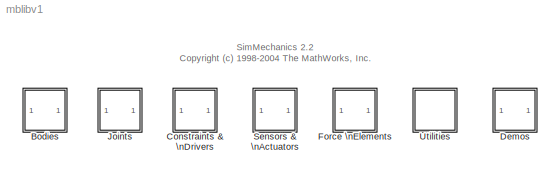
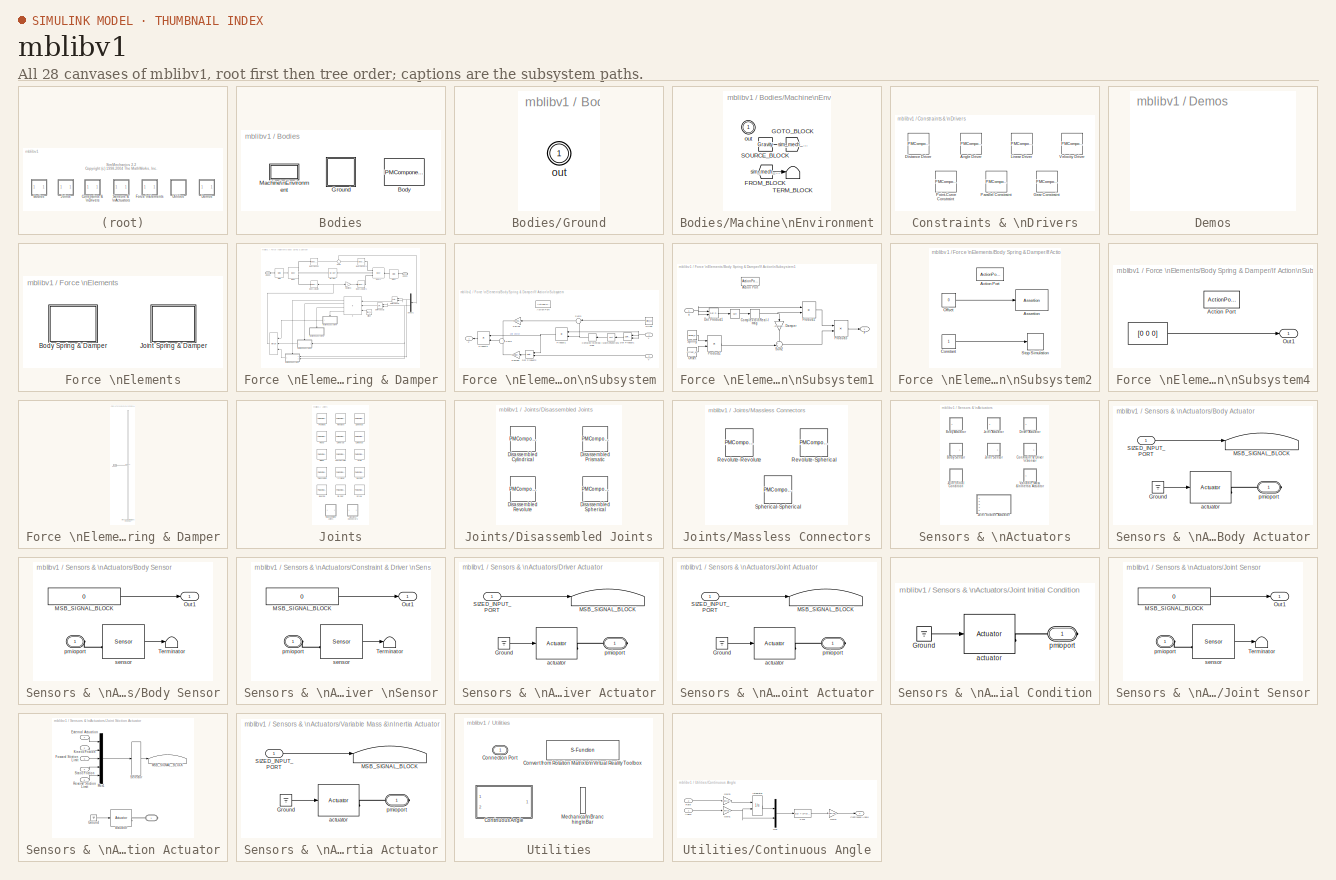
[diagram: thumbnail index - all 28 canvases of the model, root first then tree order]
MODEL mblibv1
KIND library
BLOCK [SubSystem] Bodies
  MaskDisplay = image(mech_getIcon('b_lib.bmp', 'Mechanical'))
  MaskIconFrame = on
  MaskIconOpaque = on
  MaskIconRotate = none
  MaskIconUnits = autoscale
  MinAlgLoopOccurrences = off
  Ports = []
  RTWSystemCode = Auto
  TreatAsAtomicUnit = off
BLOCK [PMComponent] Bodies/Body
  CloseFcn = mech_support('CloseFcn',gcbh);
  CopyFcn = mech_support('CopyFcn',gcbh);
  DeleteFcn = mech_support('deleteFcn',gcbh);
  LConnTagsString = CS1
  LeftPortType = workingframe
  LoadFcn = mech_support('LoadFcn',gcbh);
  MaskCallbackString = ||||||||||||||
  MaskDescription = Represents a user-defined rigid body. Body defined by mass m, inertia tensor I, and coordinate origins and axes for center of gravity (CG) and other user-specified Body coordinate systems. This dialog sets Body initial position and orientation, unless Body and/or connected Joints are actuated separately.
  MaskDisplay = image(mech_iconLoad('private/body.bmp'),'center');port_label('LConn',1,'CS1');port_label('RConn',1,'CS2');
  MaskEnableString = on,on,on,on,on,on,on,on,on,on,on,on,on,on,on
  MaskHelp = web(mech_help('body'))
  MaskIconFrame = on
  MaskIconOpaque = on
  MaskIconRotate = none
  MaskIconUnits = pixels
  MaskInitialization = mech_setIcon private/body.bmp
  MaskPromptString = ClassName|DialogClass|MASS_VALUE|MASS_UNITS|INERTIA_UNITS|INERTIA_VALUE|BASE_GEOMETRY|GEOMETRY_DIMS|GEOMETRY_UNITS|GEOMETRY_USE|DENSITY_VALUE|DENSITY_UNITS|DENSITY_USE|CG_FRAME|WORKING_FRAMES
  MaskSelfModifiable = on
  MaskStyleString = edit,edit,edit,edit,edit,edit,edit,edit,edit,edit,edit,edit,edit,edit,edit
  MaskTabNameString = ,,,,,,,,,,,,,,
  MaskToolTipString = on,on,on,on,on,on,on,on,on,on,on,on,on,on,on
  MaskTunableValueString = on,on,on,on,on,on,on,on,on,on,on,on,on,on,on
  MaskType = msb
  MaskValueString = Body|MechanicalBodyBlock|1|kg|kg*m^2|eye(3)|Cylinder|[1 1]|m|false|1|kg/m^3|false|None$CG$[0 0 0]$INERTIAL$INERTIAL$m$[0 0 0]$Euler X-Y-Z$deg$INERTIAL$false|Left$CS1$[0 0 0]$CG$CG$m$[0 0 0]$Euler X-Y-Z$deg$INERTIAL$true#Right$CS2$[0 0 0]$CG$CG$m$[0 0 0]$Euler X-Y-Z$deg$INERTIAL$true|
  MaskVarAliasString = ,,,,,,,,,,,,,,
  MaskVariables = ClassName=&1;DialogClass=&2;Mass=@3;MassUnits=&4;InertiaUnits=&5;Inertia=@6;Shape=&7;ShapeDims=@8;ShapeUnits=&9;ShapeUse=&10;Density=@11;DensityUnits=&12;DensityUse=&13;CG=&14;WorkingFrames=&15;
  MaskVisibilityString = on,on,on,on,on,on,on,on,on,on,on,on,on,off,off
  ModelCloseFcn = mech_support('modelCloseFcn',gcbh);
  NameChangeFcn = mech_support('nameChangeFcn',gcbh);
  OpenFcn = mech_support('openFcn',gcbh);
  PhysicalDomain = mechanical
  Ports = [0, 0, 0, 0, 0, 1, 1]
  PostSaveFcn = mech_support('PostSaveFcn');
  PreSaveFcn = mech_support('PreSaveFcn');
  RConnTagsString = CS2
  RightPortType = workingframe
  StartFcn = mech_support('StartFcn',gcbh);
  StopFcn = mech_support('StopFcn',gcbh);
  SubClassName = Unknown
  UndoDeleteFcn = mech_support('undoDeleteFcn',gcbh);
BLOCK [SubSystem] Bodies/Ground
  CloseFcn = mech_support('CloseFcn',gcbh);
  CopyFcn = mech_support('CopyFcn',gcbh);
  DeleteFcn = mech_support('deleteFcn',gcbh);
  LoadFcn = mech_support('LoadFcn',gcbh);
  MaskCallbackString = |||||||||
  MaskDescription = Grounds one side of a Joint to a fixed location in the World coordinate system.
  MaskDisplay = image(mech_getIcon('ground.bmp', 'Mechanical'),'center','on');
  MaskEnableString = on,on,on,on,on,on,on,on,on,on
  MaskHelp = web(mech_help('ground'))
  MaskIconFrame = on
  MaskIconOpaque = on
  MaskIconRotate = port
  MaskIconUnits = pixels
  MaskInitialization = mech_initGround('ground', gcbh, MachineId);
  MaskPromptString = LeftPortType|RightPortType|PhysicalDomain|DialogClass|ClassName|CoordPosition|CoordPositionUnits|StateVectorMgrId|MachineId|ShowEnvPort
  MaskSelfModifiable = on
  MaskStyleString = edit,edit,edit,edit,edit,edit,popup(km|m|cm|mm|mi|ft|in),edit,edit,checkbox
  MaskTabNameString = ,,,,,,,,,
  MaskToolTipString = on,on,on,on,on,on,on,on,on,on
  MaskTunableValueString = on,on,on,on,on,on,on,on,on,on
  MaskType = msb
  MaskValueString = env|workingframe|Mechanical|GroundBlock|Ground|[0 0 0]|m|-1|[0 0]|off
  MaskVarAliasString = ,,,,,,,,,
  MaskVariables = LeftPortType=&1;RightPortType=&2;PhysicalDomain=&3;DialogClass=&4;ClassName=&5;CoordPosition=@6;CoordPositionUnits=&7;StateVectorMgrId=@8;MachineId=@9;ShowEnvPort=@10;
  MaskVisibilityString = off,off,off,on,on,on,on,on,on,on
  MinAlgLoopOccurrences = off
  ModelCloseFcn = mech_support('modelCloseFcn',gcbh);
  NameChangeFcn = mech_support('nameChangeFcn',gcbh);
  Opaque = on
  OpenFcn = mech_support('openFcn',gcbh);
  Ports = [0, 0, 0, 0, 0, 0, 1]
  PostSaveFcn = mech_support('PostSaveFcn',gcbh);
  PreSaveFcn = mech_support('PreSaveFcn', gcbh);
  RTWSystemCode = Auto
  StartFcn = mech_support('StartFcn',gcbh);
  StopFcn = mech_support('StopFcn',gcbh);
  TreatAsAtomicUnit = off
  UndoDeleteFcn = mech_support('undoDeleteFcn',gcbh);
  UserData = DataTag0
  UserDataPersistent = on
BLOCK [PMIOPort] Bodies/Ground/out
  Port = 1
  Side = Right
BLOCK [SubSystem] Bodies/Machine\nEnvironment
  CopyFcn = mech_environment_block('CopyFcn', gcbh);
  DialogController = MECH.DialogSource
  MaskCallbackString = ||||||||||||||||||||
  MaskDescription = Defines the mechanical simulation environment for the machine to which the block is connected: gravity, dimensionality, analysis mode, constraint solver type, tolerances, linearization, and visualization.
  MaskDisplay = disp('Env')
  MaskEnableString = on,on,on,on,on,on,on,on,on,on,on,on,on,on,on,on,on,on,on,on,on
  MaskHelp = web(mech_help('machineenvironment'))
  MaskIconFrame = on
  MaskIconOpaque = on
  MaskIconRotate = none
  MaskIconUnits = pixels
  MaskInitialization = mech_environment_block('MaskInitialization', gcbh);
  MaskPromptString = PortType|PhysicalDomain|ClassName|DialogTemplateClass|SyncWhenCopied|Gravity|GravityUnits|GravityAsSignal|Dimensionality|AnalysisType|LinearAssemblyTolerance|LinearAssemblyToleranceUnits|AngularAssemblyTolerance|AngularAssemblyToleranceUnits|ConstraintSolverType|ConstraintRelTolerance|ConstraintAbsTolerance|UseRobustSingularityHandling|StatePerturbationType|PerturbationSize|VisualizeMachine
  MaskSelfModifiable = on
  MaskStyleString = edit,edit,edit,edit,edit,edit,popup(km/s^2|m/s^2|cm/s^2|mm/s^2|mi/s^2|ft/s^2|in/s^2),checkbox,popup(2D Only|3D Only|Auto-detect),popup(Forward dynamics|Inverse dynamics|Kinematics|Trimming),edit,popup(km|m|cm|mm|mi|ft|in),edit,popup(deg|rad),popup(Stabilizing|Tolerancing|Machine precision),edit,edit,checkbox,popup(Adaptive|Fixed),edit,checkbox
  MaskTabNameString = ,,,,,,,,,,,,,,,,,,,,
  MaskToolTipString = on,on,on,on,on,on,on,on,on,on,on,on,on,on,on,on,on,on,on,on,on
  MaskTunableValueString = on,on,on,on,on,on,on,on,on,on,on,on,on,on,on,on,on,on,on,on,on
  MaskType = Mechanical
  MaskValueString = env|Mechanical|Environment|MECH.MachineEnvironment|on|[0 -9.81 0]|m/s^2|off|Auto-detect|Forward dynamics|0.001|m|0.001|rad|Stabilizing|0.0001|0.0001|off|Adaptive|0.001|on
  MaskVarAliasString = ,,,,,,,,,,,,,,,,,,,,
  MaskVariables = PortType=&1;PhysicalDomain=&2;ClassName=&3;DialogTemplateClass=&4;SyncWhenCopied=&5;Gravity=@6;GravityUnits=&7;GravityAsSignal=&8;Dimensionality=&9;AnalysisType=&10;LinearAssemblyTolerance=@11;LinearAssemblyToleranceUnits=&12;AngularAssemblyTolerance=@13;AngularAssemblyToleranceUnits=&14;ConstraintSolverType=&15;ConstraintRelTolerance=@16;ConstraintAbsTolerance=@17;UseRobustSingularityHandling=&18...<+69ch>
  MaskVisibilityString = off,off,off,off,off,on,on,on,on,on,on,on,on,on,on,on,on,on,on,on,on
  MinAlgLoopOccurrences = off
  Opaque = on
  Ports = [0, 0, 0, 0, 0, 0, 1]
  RTWSystemCode = Auto
  Tag = Factory ground
  TreatAsAtomicUnit = off
BLOCK [From] Bodies/Machine\nEnvironment/FROM_BLOCK
  DialogController = Simulink.DDGSource
  GotoTag = sim_mech_tag4adc8ab855a5337
BLOCK [Goto] Bodies/Machine\nEnvironment/GOTO_BLOCK
  DialogController = Simulink.DDGSource
  GotoTag = sim_mech_tag4adc8ab855a5337
  TagVisibility = global
BLOCK [Constant] Bodies/Machine\nEnvironment/SOURCE_BLOCK
  Value = Gravity
BLOCK [Terminator] Bodies/Machine\nEnvironment/TERM_BLOCK
BLOCK [PMIOPort] Bodies/Machine\nEnvironment/out
  Port = 1
  Side = Right
BLOCK [SubSystem] Constraints & \nDrivers
  MaskDisplay = image(mech_iconLoad('private/constr_lib.bmp'))
  MaskIconFrame = on
  MaskIconOpaque = on
  MaskIconRotate = none
  MaskIconUnits = autoscale
  MinAlgLoopOccurrences = off
  Ports = []
  RTWSystemCode = Auto
  TreatAsAtomicUnit = off
BLOCK [PMComponent] Constraints & \nDrivers/Angle Driver
  CloseFcn = mech_support('CloseFcn',gcbh);
  CopyFcn = mech_support('CopyFcn',gcbh);
  DeleteFcn = mech_support('deleteFcn',gcbh);
  LConnTagsString = __newl0
  LeftPortType = blob
  LoadFcn = mech_support('LoadFcn',gcbh);
  MaskCallbackString = ||||||
  MaskDescription = Drives the angle between base (B) and follower (F) Body axis vectors with a specified Driver Actuator signal, which is added to the initial condition. An unactuated Driver holds the angle in its initial state. Fixed axes define body axis vectors in base and follower coordinate systems. Sensor and actuator ports can be added. Base-follower sequence determines sign of forward motion.
  MaskDisplay = image(mech_getIcon('ang_drvr.bmp', 'Mechanical'),'center');color('magenta'); port_label('LConn',1,'B'); port_label('RConn',1,'F')
  MaskEnableString = on,on,on,on,on,on,on
  MaskHelp = web(mech_help('angledriver'))
  MaskIconFrame = on
  MaskIconOpaque = on
  MaskIconRotate = none
  MaskIconUnits = pixels
  MaskPromptString = ClassName|DialogClass|NumSAPorts|LeftCsys|RightCsys|LeftAxis|RightAxis
  MaskSelfModifiable = on
  MaskStyleString = edit,edit,edit,edit,edit,edit,edit
  MaskTabNameString = ,,,,,,
  MaskToolTipString = on,on,on,on,on,on,on
  MaskTunableValueString = on,on,on,on,on,on,on
  MaskType = AngleDriverConstraint
  MaskValueString = AngleDriver|AngleDriverConstraint|0|WORLD|WORLD|[1 0 0]|[1 0 0]
  MaskVarAliasString = ,,,,,,
  MaskVariables = ClassName=&1;DialogClass=&2;NumSAPorts=@3;LeftCsys=&4;RightCsys=&5;LeftAxis=@6;RightAxis=@7;
  MaskVisibilityString = on,on,on,on,on,on,on
  ModelCloseFcn = mech_support('modelCloseFcn',gcbh);
  NameChangeFcn = mech_support('nameChangeFcn',gcbh);
  OpenFcn = mech_support('openFcn',gcbh);
  PhysicalDomain = mechanical
  Ports = [0, 0, 0, 0, 0, 1, 1]
  RConnTagsString = __newr0
  RightPortType = blob
  StartFcn = mech_support('StartFcn',gcbh);
  StopFcn = mech_support('StopFcn',gcbh);
  SubClassName = Unknown
  UndoDeleteFcn = mech_support('undoDeleteFcn',gcbh);
BLOCK [PMComponent] Constraints & \nDrivers/Distance Driver
  CloseFcn = mech_support('CloseFcn',gcbh);
  CopyFcn = mech_support('CopyFcn',gcbh);
  DeleteFcn = mech_support('deleteFcn',gcbh);
  LConnTagsString = __newl0
  LeftPortType = blob
  LoadFcn = mech_support('LoadFcn',gcbh);
  MaskCallbackString = ||
  MaskDescription = Drives the distance between origins of the base (B) and follower (F) Body coordinate systems with a specified Driver Actuator signal, which is added to the initial condition. An unactuated Driver holds the distance in its initial state. Distance must remain non-negative at all times. Sensor and actuator ports can be added.
  MaskDisplay = image(mech_getIcon('dist_drvr.bmp', 'Mechanical'),'center');color('magenta'); port_label('LConn',1,'B'); port_label('RConn',1,'F')
  MaskEnableString = on,on,on
  MaskHelp = web(mech_help('distancedriver'))
  MaskIconFrame = on
  MaskIconOpaque = on
  MaskIconRotate = none
  MaskIconUnits = pixels
  MaskPromptString = ClassName|DialogClass|NumSAPorts
  MaskSelfModifiable = on
  MaskStyleString = edit,edit,edit
  MaskTabNameString = ,,
  MaskToolTipString = on,on,on
  MaskTunableValueString = on,on,on
  MaskType = DistanceDriverConstraint
  MaskValueString = DistanceDriver|DistanceDriverConstraint|0
  MaskVarAliasString = ,,
  MaskVariables = ClassName=&1;DialogClass=&2;NumSAPorts=@3;
  MaskVisibilityString = on,on,on
  ModelCloseFcn = mech_support('modelCloseFcn',gcbh);
  NameChangeFcn = mech_support('nameChangeFcn',gcbh);
  OpenFcn = mech_support('openFcn',gcbh);
  PhysicalDomain = mechanical
  Ports = [0, 0, 0, 0, 0, 1, 1]
  RConnTagsString = __newr0
  RightPortType = blob
  StartFcn = mech_support('StartFcn',gcbh);
  StopFcn = mech_support('StopFcn',gcbh);
  SubClassName = Unknown
  UndoDeleteFcn = mech_support('undoDeleteFcn',gcbh);
BLOCK [PMComponent] Constraints & \nDrivers/Gear Constraint
  CloseFcn = mech_support('CloseFcn',gcbh);
  CopyFcn = mech_support('CopyFcn',gcbh);
  DeleteFcn = mech_support('deleteFcn',gcbh);
  LConnTagsString = __newl0
  LeftPortType = blob
  LoadFcn = mech_support('LoadFcn',gcbh);
  MaskCallbackString = ||||||
  MaskDescription = Constrains the base (B) and follower (F) Bodies to corotate as meshed gears with pitch circles. The base and follower Bodies must be attached to a third, carrier Body by Revolute or Cylindrical Joints. These joints define the gear rotational axes. Sensor ports can be added. Base-follower sequence determines sign of forward motion.
  MaskDisplay = image(mech_getIcon('gear.bmp', 'Mechanical'),'center');color('magenta'); port_label('LConn',1,'B'); port_label('RConn',1,'F')
  MaskEnableString = on,on,on,on,on,on,on
  MaskHelp = web(mech_help('gearconstraint'))
  MaskIconFrame = on
  MaskIconOpaque = on
  MaskIconRotate = none
  MaskIconUnits = pixels
  MaskPromptString = ClassName|DialogClass|NumSAPorts|BaseRadius|BaseRadiusUnits|FollowerRadius|FollowerRadiusUnits
  MaskSelfModifiable = on
  MaskStyleString = edit,edit,edit,edit,edit,edit,edit
  MaskTabNameString = ,,,,,,
  MaskToolTipString = on,on,on,on,on,on,on
  MaskTunableValueString = on,on,on,on,on,on,on
  MaskType = GearConstraint
  MaskValueString = GearConstraint|GearConstraint|0|1|m|1|m
  MaskVarAliasString = ,,,,,,
  MaskVariables = ClassName=&1;DialogClass=&2;NumSAPorts=@3;BaseRadius=@4;BaseRadiusUnits=&5;FollowerRadius=@6;FollowerRadiusUnits=&7;
  MaskVisibilityString = on,on,on,on,on,on,on
  ModelCloseFcn = mech_support('modelCloseFcn',gcbh);
  NameChangeFcn = mech_support('nameChangeFcn',gcbh);
  OpenFcn = mech_support('openFcn',gcbh);
  PhysicalDomain = mechanical
  Ports = [0, 0, 0, 0, 0, 1, 1]
  RConnTagsString = __newr0
  RightPortType = blob
  StartFcn = mech_support('StartFcn',gcbh);
  StopFcn = mech_support('StopFcn',gcbh);
  SubClassName = Unknown
  UndoDeleteFcn = mech_support('undoDeleteFcn',gcbh);
BLOCK [PMComponent] Constraints & \nDrivers/Linear Driver
  CloseFcn = mech_support('CloseFcn',gcbh);
  CopyFcn = mech_support('CopyFcn',gcbh);
  DeleteFcn = mech_support('deleteFcn',gcbh);
  LConnTagsString = __newl0
  LeftPortType = blob
  LoadFcn = mech_support('LoadFcn',gcbh);
  MaskCallbackString = |||
  MaskDescription = Drives one component [X, Y, or Z] of the relative vector between the origins of the base (B) and follower (F) Body coordinate systems with a Driver Actuator signal, which is added to the initial condition. An unactuated Driver holds the component in its initial state. Vector component measured with respect to the World coordinate system. Follower is the head and base is the tail of relative vector...<+142ch>
  MaskDisplay = image(mech_getIcon('lin_drvr.bmp', 'Mechanical'),'center');color('magenta'); port_label('LConn',1,'B'); port_label('RConn',1,'F')
  MaskEnableString = on,on,on,on
  MaskHelp = web(mech_help('lineardriver'))
  MaskIconFrame = on
  MaskIconOpaque = on
  MaskIconRotate = none
  MaskIconUnits = pixels
  MaskPromptString = ClassName|DialogClass|NumSAPorts|GlobalCoordinate
  MaskSelfModifiable = on
  MaskStyleString = edit,edit,edit,edit
  MaskTabNameString = ,,,
  MaskToolTipString = on,on,on,on
  MaskTunableValueString = on,on,on,on
  MaskType = LinearDriverConstraint
  MaskValueString = LinearDriver|LinearDriverConstraint|0|X
  MaskVarAliasString = ,,,
  MaskVariables = ClassName=&1;DialogClass=&2;NumSAPorts=@3;GlobalCoordinate=&4;
  MaskVisibilityString = on,on,on,on
  ModelCloseFcn = mech_support('modelCloseFcn',gcbh);
  NameChangeFcn = mech_support('nameChangeFcn',gcbh);
  OpenFcn = mech_support('openFcn',gcbh);
  PhysicalDomain = mechanical
  Ports = [0, 0, 0, 0, 0, 1, 1]
  RConnTagsString = __newr0
  RightPortType = blob
  StartFcn = mech_support('StartFcn',gcbh);
  StopFcn = mech_support('StopFcn',gcbh);
  SubClassName = Unknown
  UndoDeleteFcn = mech_support('undoDeleteFcn',gcbh);
BLOCK [PMComponent] Constraints & \nDrivers/Parallel Constraint
  CloseFcn = mech_support('CloseFcn',gcbh);
  CopyFcn = mech_support('CopyFcn',gcbh);
  DeleteFcn = mech_support('deleteFcn',gcbh);
  LConnTagsString = __newl0
  LeftPortType = blob
  LoadFcn = mech_support('LoadFcn',gcbh);
  MaskCallbackString = ||||
  MaskDescription = Constrains one Body axis vector defined on both base (B) and follower (F) Bodies to remain parallel. Parallel constraint axis defines initial direction of both Body axis vectors in base and follower Body coordinate systems. Sensor ports can be added. Base-follower sequence determines sign of forward motion.
  MaskDisplay = image(mech_getIcon('parallel.bmp', 'Mechanical'),'center');color('magenta'); port_label('LConn',1,'B'); port_label('RConn',1,'F')
  MaskEnableString = on,on,on,on,on
  MaskHelp = web(mech_help('parallelconstraint'))
  MaskIconFrame = on
  MaskIconOpaque = on
  MaskIconRotate = none
  MaskIconUnits = pixels
  MaskPromptString = ClassName|DialogClass|NumSAPorts|Csys|Axis
  MaskSelfModifiable = on
  MaskStyleString = edit,edit,edit,edit,edit
  MaskTabNameString = ,,,,
  MaskToolTipString = on,on,on,on,on
  MaskTunableValueString = on,on,on,on,on
  MaskType = ParallelConstraint
  MaskValueString = ParallelConstraint|ParallelConstraint|0|WORLD|[1 0 0]
  MaskVarAliasString = ,,,,
  MaskVariables = ClassName=&1;DialogClass=&2;NumSAPorts=@3;Csys=&4;Axis=@5;
  MaskVisibilityString = on,on,on,on,on
  ModelCloseFcn = mech_support('modelCloseFcn',gcbh);
  NameChangeFcn = mech_support('nameChangeFcn',gcbh);
  OpenFcn = mech_support('openFcn',gcbh);
  PhysicalDomain = mechanical
  Ports = [0, 0, 0, 0, 0, 1, 1]
  RConnTagsString = __newr0
  RightPortType = blob
  StartFcn = mech_support('StartFcn',gcbh);
  StopFcn = mech_support('StopFcn',gcbh);
  SubClassName = Unknown
  UndoDeleteFcn = mech_support('undoDeleteFcn',gcbh);
BLOCK [PMComponent] Constraints & \nDrivers/Point-Curve Constraint
  CloseFcn = mech_support('CloseFcn',gcbh);
  CopyFcn = mech_support('CopyFcn',gcbh);
  DeleteFcn = mech_support('deleteFcn',gcbh);
  LConnTagsString = __newl0
  LeftPortType = blob
  LoadFcn = mech_support('LoadFcn',gcbh);
  MaskCallbackString = ||||||||
  MaskDescription = Constrains the Body coordinate system origin on Body (B) to move along a curve defined in the Body coordinate system on Body (F). The curve is defined as a spline with breakpoints. Sensor ports can be added. Base-follower sequence determines sign of forward motion.
  MaskDisplay = color('magenta');image(mech_getIcon('pt_curve.bmp','Mechanical'),'center');port_label('LConn',1,'B'); port_label('RConn',1,'F')
  MaskEnableString = on,on,on,on,on,on,on,on,on
  MaskHelp = web(mech_help('pointcurveconstraint'))
  MaskIconFrame = on
  MaskIconOpaque = on
  MaskIconRotate = none
  MaskIconUnits = pixels
  MaskPromptString = ClassName|DialogClass|Units|Xbreaks|Ybreaks|Zbreaks|EndConditions|CanExtrapolate|NumSAPorts
  MaskSelfModifiable = on
  MaskStyleString = edit,edit,edit,edit,edit,edit,edit,edit,edit
  MaskTabNameString = ,,,,,,,,
  MaskToolTipString = on,on,on,on,on,on,on,on,on
  MaskTunableValueString = on,on,on,on,on,on,on,on,on
  MaskType = PointCurveConstraint
  MaskValueString = PointCurve|PointCurveConstraint|m|[  ]|[  ]|[  ]|natural|off|0
  MaskVarAliasString = ,,,,,,,,
  MaskVariables = ClassName=&1;DialogClass=&2;Units=&3;Xbreaks=@4;Ybreaks=@5;Zbreaks=@6;EndConditions=&7;CanExtrapolate=&8;NumSAPorts=@9;
  MaskVisibilityString = on,on,on,on,on,on,on,on,on
  ModelCloseFcn = mech_support('modelCloseFcn',gcbh);
  NameChangeFcn = mech_support('nameChangeFcn',gcbh);
  OpenFcn = mech_support('openFcn',gcbh);
  PhysicalDomain = mechanical
  Ports = [0, 0, 0, 0, 0, 1, 1]
  RConnTagsString = __newr0
  RightPortType = blob
  StartFcn = mech_support('StartFcn',gcbh);
  StopFcn = mech_support('StopFcn',gcbh);
  SubClassName = Unknown
  UndoDeleteFcn = mech_support('undoDeleteFcn',gcbh);
BLOCK [PMComponent] Constraints & \nDrivers/Velocity Driver
  CloseFcn = mech_support('CloseFcn',gcbh);
  CopyFcn = mech_support('CopyFcn',gcbh);
  DeleteFcn = mech_support('deleteFcn',gcbh);
  LConnTagsString = __newl0
  LeftPortType = blob
  LoadFcn = mech_support('LoadFcn',gcbh);
  MaskCallbackString = ||||||||||||
  MaskDescription = Drives a linear combination of projected linear and angular velocities of the base (B) and follower (F) Bodies with a specified Driver Actuator signal, which is added to the initial condition. An unactuated Driver holds the linear combination in its initial state. Sensor and actuator ports can be added. Base-follower sequence determines sign of forward motion.
  MaskDisplay = image(mech_getIcon('con_vel.bmp', 'Mechanical'),'center');color('magenta'); port_label('LConn',1,'B'); port_label('RConn',1,'F')
  MaskEnableString = on,on,on,on,on,on,on,on,on,on,on,on,on
  MaskHelp = web(mech_help('velocitydriver'))
  MaskIconFrame = on
  MaskIconOpaque = on
  MaskIconRotate = none
  MaskIconUnits = pixels
  MaskPromptString = ClassName|DialogClass|NumSAPorts|Unit_V|Unit_Omega|Coef_V_Base|Csys_V_Base|Coef_Omega_Base|Csys_Omega_Base|Coef_V_Follower|Csys_V_Follower|Coef_Omega_Follower|Csys_Omega_Follower
  MaskSelfModifiable = on
  MaskStyleString = edit,edit,edit,edit,edit,edit,edit,edit,edit,edit,edit,edit,edit
  MaskTabNameString = ,,,,,,,,,,,,
  MaskToolTipString = on,on,on,on,on,on,on,on,on,on,on,on,on
  MaskTunableValueString = on,on,on,on,on,on,on,on,on,on,on,on,on
  MaskType = ConstantVelocityConstraint
  MaskValueString = ConstantVelocity|ConstantVelocityConstraint|0|m/s|deg/s|[1 0 0]|WORLD|[1 0 0]|WORLD|[1 0 0]|WORLD|[1 0 0]|WORLD
  MaskVarAliasString = ,,,,,,,,,,,,
  MaskVariables = ClassName=&1;DialogClass=&2;NumSAPorts=@3;Unit_V=&4;Unit_Omega=&5;Coef_V_Base=@6;Csys_V_Base=&7;Coef_Omega_Base=@8;Csys_Omega_Base=&9;Coef_V_Follower=@10;Csys_V_Follower=&11;Coef_Omega_Follower=@12;Csys_Omega_Follower=&13;
  MaskVisibilityString = on,on,on,on,on,on,on,on,on,on,on,on,on
  ModelCloseFcn = mech_support('modelCloseFcn',gcbh);
  NameChangeFcn = mech_support('nameChangeFcn',gcbh);
  OpenFcn = mech_support('openFcn',gcbh);
  PhysicalDomain = mechanical
  Ports = [0, 0, 0, 0, 0, 1, 1]
  RConnTagsString = __newr0
  RightPortType = blob
  StartFcn = mech_support('StartFcn',gcbh);
  StopFcn = mech_support('StopFcn',gcbh);
  SubClassName = Unknown
  UndoDeleteFcn = mech_support('undoDeleteFcn',gcbh);
BLOCK [SubSystem] Demos
  MaskDisplay = image(mech_getIcon('demo_lib.bmp', 'Mechanical'))
  MaskIconFrame = on
  MaskIconOpaque = on
  MaskIconRotate = none
  MaskIconUnits = autoscale
  MinAlgLoopOccurrences = off
  OpenFcn = demo('simulink','SimMechanics')
  Ports = []
  RTWSystemCode = Auto
  TreatAsAtomicUnit = off
BLOCK [SubSystem] Force \nElements
  MaskDisplay = image(mech_getIcon('forceelements_lib.bmp', 'Mechanical'))
  MaskIconFrame = on
  MaskIconOpaque = on
  MaskIconRotate = none
  MaskIconUnits = autoscale
  MinAlgLoopOccurrences = off
  Ports = []
  RTWSystemCode = Auto
  TreatAsAtomicUnit = off
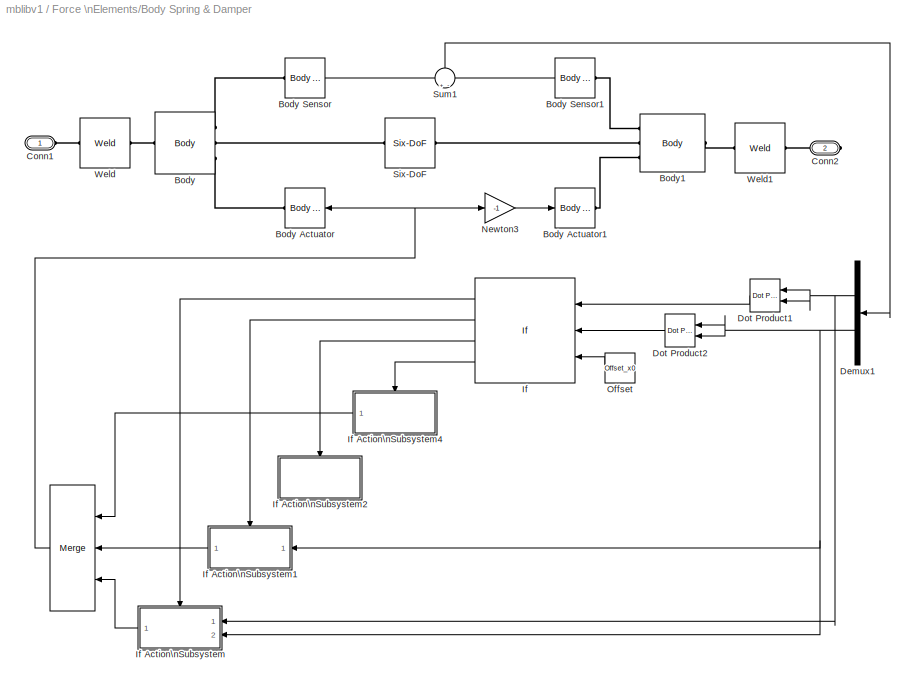
BLOCK [SubSystem] Force \nElements/Body Spring & Damper
  CloseFcn = mech_support('CloseFcn',gcbh);
  CopyFcn = mech_support('CopyFcn',gcbh);
  DeleteFcn = mech_support('deleteFcn',gcbh);
  LoadFcn = mech_support('LoadFcn',gcbh);
  MaskCallbackString = |||||||
  MaskDescription = Models a damped linear oscillator between two Bodies, equivalent to a translational spring and damper. The force F between the bodies is projected along the axis connecting the Body coordinate systems and is a function of the relative displacement r and velocity v of these Body coordinate systems, given by F = -k*(r-r0) - b*v. The parameters r0, k, and b represent the spring's natural length, the ...<+55ch>
  MaskDisplay = image(mech_getIcon('body_springdamper.bmp', 'Mechanical'),'center')
  MaskEnableString = on,on,on,on,on,on,on,on
  MaskHelp = web(mech_help('bodyspringdamper'))
  MaskIconFrame = on
  MaskIconOpaque = on
  MaskIconRotate = none
  MaskIconUnits = pixels
  MaskInitialization = mech_support('MaskInit', gcbh);
  MaskPromptString = ClassName|DialogClass|Spring_k|Damper_b|Offset_x0|PositionUnits|VelocityUnits|ForceUnits
  MaskSelfModifiable = on
  MaskStyleString = edit,edit,edit,edit,edit,edit,edit,edit
  MaskTabNameString = ,,,,,,,
  MaskToolTipString = on,on,on,on,on,on,on,on
  MaskTunableValueString = on,on,on,on,on,on,on,on
  MaskType = msb
  MaskValueString = BodyForceElement|BodySpringDamper|0|0|0|m|m/s|N
  MaskVarAliasString = ,,,,,,,
  MaskVariables = ClassName=&1;DialogClass=&2;Spring_k=@3;Damper_b=@4;Offset_x0=@5;PositionUnits=&6;VelocityUnits=&7;ForceUnits=&8;
  MaskVisibilityString = on,on,on,on,on,on,on,on
  MinAlgLoopOccurrences = off
  ModelCloseFcn = mech_support('modelCloseFcn',gcbh);
  NameChangeFcn = mech_support('nameChangeFcn',gcbh);
  OpenFcn = mech_support('openFcn',gcbh);
  Ports = [0, 0, 0, 0, 0, 1, 1]
  RTWSystemCode = Auto
  StartFcn = mech_support('StartFcn',gcbh);
  StopFcn = mech_support('StopFcn',gcbh);
  TreatAsAtomicUnit = off
  UndoDeleteFcn = mech_support('undoDeleteFcn',gcbh);
BLOCK [Merge] Force \nElements/Body Spring & Damper/ 
  Inputs = 3
  Ports = [3, 1]
BLOCK [Reference] Force \nElements/Body Spring & Damper/Body  REF=mblibv1/Bodies/Body
  CG = Left$CG$[0 0 0]$CS1$CS1$m$[0 0 0]$Euler X-Y-Z$deg$WORLD$false
  ClassName = Body
  Density = 1
  DensityUnits = kg/m^3
  DensityUse = false
  DialogClass = MechanicalBodyBlock
  Inertia = zeros(3, 3)
  InertiaUnits = kg*m^2
  LConnTagsString = CS1
  LeftPortType = workingframe
  Mass = 0
  MassUnits = kg
  PhysicalDomain = mechanical
  Ports = [0, 0, 0, 0, 0, 1, 3]
  RConnTagsString = CS2|CS3|CS4
  RightPortType = workingframe
  Shape = Cylinder
  ShapeDims = [1 1]
  ShapeUnits = m
  ShapeUse = false
  SourceBlock = mblibv1/Bodies/Body
  SourceType = msb
  SubClassName = Unknown
  WorkingFrames = Left$CS1$[0 0 0]$ADJOINING$ADJOINING$m$[0 0 0]$Euler X-Y-Z$deg$WORLD$true#Right$CS2$[0 0 0]$CS1$CS1$m$[0 0 0]$Euler X-Y-Z$deg$WORLD$true#Right$CS3$[0 0 0]$CS1$CS1$m$[0 0 0]$Euler X-Y-Z$deg$WORLD$true#Right$CS4$[0 0 0]$CS1$CS1$m$[0 0 0]$Euler X-Y-Z$deg$WORLD$true
BLOCK [Reference] Force \nElements/Body Spring & Damper/Body Actuator  REF=mblibv1/Sensors & \nActuators/Body Actuator
  AccelerationUnits = m/s^2
  ActiveIO = off
  ActuationStyle = Force
  Angle = off
  AngleUnits = deg
  ArcAccelerationUnits = deg/s^2
  ArcVelocityUnits = deg/s
  ClassName = BodyActuatorForceTorque
  CoordPosition = on
  CoordPositionUnits = m
  DialogClass = MechanicalActuatorBlock
  Force = on
  ForceUnits = N
  Opaque = on
  PhysicalDomain = Mechanical
  PortType = blob
  Ports = [1, 0, 0, 0, 0, 0, 1]
  ReferenceFrame = Absolute (INERTIAL)
  ShowPortLabels = on
  SourceBlock = mblibv1/Sensors & \nActuators/Body Actuator
  SourceType = msb
  Torque = off
  TorqueUnits = N-m
  VelocityUnits = m/s
  Width = 3
BLOCK [Reference] Force \nElements/Body Spring & Damper/Body Actuator1  REF=mblibv1/Sensors & \nActuators/Body Actuator
  AccelerationUnits = m/s^2
  ActiveIO = off
  ActuationStyle = Force
  Angle = off
  AngleUnits = deg
  ArcAccelerationUnits = deg/s^2
  ArcVelocityUnits = deg/s
  ClassName = BodyActuatorForceTorque
  CoordPosition = on
  CoordPositionUnits = m
  DialogClass = MechanicalActuatorBlock
  Force = on
  ForceUnits = N
  Opaque = on
  PhysicalDomain = Mechanical
  PortType = blob
  Ports = [1, 0, 0, 0, 0, 0, 1]
  ReferenceFrame = Absolute (INERTIAL)
  ShowPortLabels = on
  SourceBlock = mblibv1/Sensors & \nActuators/Body Actuator
  SourceType = msb
  Torque = off
  TorqueUnits = N-m
  VelocityUnits = m/s
  Width = 3
BLOCK [Reference] Force \nElements/Body Spring & Damper/Body Sensor  REF=mblibv1/Sensors & \nActuators/Body Sensor
  Acceleration = off
  AccelerationUnits = m/s^2
  ActiveIO = off
  Angle = on
  AngleUnits = deg
  ArcAcceleration = off
  ArcAccelerationUnits = deg/s^2
  ArcVelocity = off
  ArcVelocityUnits = deg/s
  ClassName = BodySensor
  CoordPosition = on
  CoordPositionUnits = m
  DialogClass = MechanicalSensorBlock
  Muxed = on
  Opaque = on
  OutputVector = [ 3 3 ]
  PhysicalDomain = Mechanical
  PortType = blob
  Ports = [0, 1, 0, 0, 0, 1]
  Pose = off
  Quaternion = on
  QuaternionDDT = off
  QuaternionDT = off
  QuaternionUnits = deg
  ReferenceFrame = Absolute (World)
  ShowPortLabels = on
  SourceBlock = mblibv1/Sensors & \nActuators/Body Sensor
  SourceType = msb
  Velocity = on
  VelocityUnits = m/s
  Width = 6
BLOCK [Reference] Force \nElements/Body Spring & Damper/Body Sensor1  REF=mblibv1/Sensors & \nActuators/Body Sensor
  Acceleration = off
  AccelerationUnits = m/s^2
  ActiveIO = off
  Angle = on
  AngleUnits = deg
  ArcAcceleration = off
  ArcAccelerationUnits = deg/s^2
  ArcVelocity = off
  ArcVelocityUnits = deg/s
  ClassName = BodySensor
  CoordPosition = on
  CoordPositionUnits = m
  DialogClass = MechanicalSensorBlock
  Muxed = on
  Opaque = on
  OutputVector = [ 3 3 ]
  PhysicalDomain = Mechanical
  PortType = blob
  Ports = [0, 1, 0, 0, 0, 1]
  Pose = off
  Quaternion = on
  QuaternionDDT = off
  QuaternionDT = off
  QuaternionUnits = deg
  ReferenceFrame = Absolute (World)
  ShowPortLabels = on
  SourceBlock = mblibv1/Sensors & \nActuators/Body Sensor
  SourceType = msb
  Velocity = on
  VelocityUnits = m/s
  Width = 6
BLOCK [Reference] Force \nElements/Body Spring & Damper/Body1  REF=mblibv1/Bodies/Body
  CG = Left$CG$[0 0 0]$CS2$CS2$m$[0 0 0]$Euler X-Y-Z$deg$WORLD$false
  ClassName = Body
  Density = 1
  DensityUnits = kg/m^3
  DensityUse = false
  DialogClass = MechanicalBodyBlock
  Inertia = zeros(3, 3)
  InertiaUnits = kg*m^2
  LConnTagsString = CS1|CS3|CS4
  LeftPortType = workingframe
  Mass = 0
  MassUnits = kg
  PhysicalDomain = mechanical
  Ports = [0, 0, 0, 0, 0, 3, 1]
  RConnTagsString = CS2
  RightPortType = workingframe
  Shape = Cylinder
  ShapeDims = [1 1]
  ShapeUnits = m
  ShapeUse = false
  SourceBlock = mblibv1/Bodies/Body
  SourceType = msb
  SubClassName = Unknown
  WorkingFrames = Left$CS1$[0 0 0]$CS2$CS2$m$[0 0 0]$Euler X-Y-Z$deg$WORLD$true#Right$CS2$[0 0 0]$ADJOINING$ADJOINING$m$[0 0 0]$Euler X-Y-Z$deg$WORLD$true#Left$CS3$[0 0 0]$CS2$CS2$m$[0 0 0]$Euler X-Y-Z$deg$WORLD$true#Left$CS4$[0 0 0]$CS2$CS2$m$[0 0 0]$Euler X-Y-Z$deg$WORLD$true
BLOCK [PMIOPort] Force \nElements/Body Spring & Damper/Conn1
  Port = 1
  Side = Left
BLOCK [PMIOPort] Force \nElements/Body Spring & Damper/Conn2
  Port = 2
  Side = Right
BLOCK [Demux] Force \nElements/Body Spring & Damper/Demux1
  Outputs = 2
  Ports = [1, 2]
BLOCK [Reference] Force \nElements/Body Spring & Damper/Dot Product1  REF=simulink/Math\nOperations/Dot Product
  DoSatur = off
  InputSameDT = off
  LockScale = off
  OutDataType = sfix(16)
  OutScaling = 2^-10
  OutputDataTypeScalingMode = Inherit via internal rule
  Ports = [2, 1]
  RndMeth = Floor
  SourceBlock = simulink/Math\nOperations/Dot Product
  SourceType = Dot Product
BLOCK [Reference] Force \nElements/Body Spring & Damper/Dot Product2  REF=simulink/Math\nOperations/Dot Product
  DoSatur = off
  InputSameDT = off
  LockScale = off
  OutDataType = sfix(16)
  OutScaling = 2^-10
  OutputDataTypeScalingMode = Inherit via internal rule
  Ports = [2, 1]
  RndMeth = Floor
  SourceBlock = simulink/Math\nOperations/Dot Product
  SourceType = Dot Product
BLOCK [If] Force \nElements/Body Spring & Damper/If
  ElseIfExpressions = u2 ~= 0, u3 ~= 0
  IfExpression = u1 ~= 0
  NumInputs = 3
  Ports = [3, 4]
  ZeroCross = off
BLOCK [SubSystem] Force \nElements/Body Spring & Damper/If Action\nSubsystem
  MinAlgLoopOccurrences = off
  Ports = [2, 1, 0, 0, 0, 0, 0, 1]
  RTWSystemCode = Auto
  TreatAsAtomicUnit = on
BLOCK [ActionPort] Force \nElements/Body Spring & Damper/If Action\nSubsystem/Action Port
BLOCK [ComplexToRealImag] Force \nElements/Body Spring & Damper/If Action\nSubsystem/Complex to\nReal-Imag
  Output = Real
  Ports = [1, 1]
BLOCK [Gain] Force \nElements/Body Spring & Damper/If Action\nSubsystem/Damper
  Gain = -Damper_b
BLOCK [Reference] Force \nElements/Body Spring & Damper/If Action\nSubsystem/Dot Product1  REF=simulink/Math\nOperations/Dot Product
  DoSatur = off
  InputSameDT = off
  LockScale = off
  OutDataType = sfix(16)
  OutScaling = 2^-10
  OutputDataTypeScalingMode = Inherit via internal rule
  Ports = [2, 1]
  RndMeth = Floor
  SourceBlock = simulink/Math\nOperations/Dot Product
  SourceType = Dot Product
BLOCK [Reference] Force \nElements/Body Spring & Damper/If Action\nSubsystem/Dot Product2  REF=simulink/Math\nOperations/Dot Product
  DoSatur = off
  InputSameDT = off
  LockScale = off
  OutDataType = sfix(16)
  OutScaling = 2^-10
  OutputDataTypeScalingMode = Inherit via internal rule
  Ports = [2, 1]
  RndMeth = Floor
  SourceBlock = simulink/Math\nOperations/Dot Product
  SourceType = Dot Product
BLOCK [Outport] Force \nElements/Body Spring & Damper/If Action\nSubsystem/F
  BusOutputAsStruct = off
  IconDisplay = Port number
BLOCK [Math] Force \nElements/Body Spring & Damper/If Action\nSubsystem/Math\nFunction1
  Operator = sqrt
  OutputSignalType = complex
  Ports = [1, 1]
BLOCK [Constant] Force \nElements/Body Spring & Damper/If Action\nSubsystem/Offset
  Value = Offset_x0
  VectorParams1D = off
BLOCK [Product] Force \nElements/Body Spring & Damper/If Action\nSubsystem/Product1
  InputSameDT = off
  Inputs = */
  Ports = [2, 1]
  RndMeth = Floor
BLOCK [Product] Force \nElements/Body Spring & Damper/If Action\nSubsystem/Product2
  InputSameDT = off
  Ports = [2, 1]
  RndMeth = Floor
BLOCK [Gain] Force \nElements/Body Spring & Damper/If Action\nSubsystem/Spring
  Gain = -Spring_k
BLOCK [Sum] Force \nElements/Body Spring & Damper/If Action\nSubsystem/Sum2
  IconShape = round
  InputSameDT = off
  OutDataTypeMode = Inherit via internal rule
  Ports = [2, 1]
BLOCK [Sum] Force \nElements/Body Spring & Damper/If Action\nSubsystem/Sum3
  IconShape = round
  InputSameDT = off
  Inputs = |-+
  OutDataTypeMode = Inherit via internal rule
  Ports = [2, 1]
BLOCK [Inport] Force \nElements/Body Spring & Damper/If Action\nSubsystem/v
  IconDisplay = Port number
  LatchInput = off
  Port = 2
BLOCK [Inport] Force \nElements/Body Spring & Damper/If Action\nSubsystem/x
  IconDisplay = Port number
  LatchInput = off
  Port = 1
BLOCK [SubSystem] Force \nElements/Body Spring & Damper/If Action\nSubsystem1
  MinAlgLoopOccurrences = off
  Ports = [1, 1, 0, 0, 0, 0, 0, 1]
  RTWSystemCode = Auto
  TreatAsAtomicUnit = on
BLOCK [Math] Force \nElements/Body Spring & Damper/If Action\nSubsystem1/ 
  Operator = sqrt
  OutputSignalType = complex
  Ports = [1, 1]
BLOCK [ActionPort] Force \nElements/Body Spring & Damper/If Action\nSubsystem1/Action Port
BLOCK [ComplexToRealImag] Force \nElements/Body Spring & Damper/If Action\nSubsystem1/Complex to\nReal-Imag
  Output = Real
  Ports = [1, 1]
BLOCK [Gain] Force \nElements/Body Spring & Damper/If Action\nSubsystem1/Damper
  Gain = -Damper_b
BLOCK [Reference] Force \nElements/Body Spring & Damper/If Action\nSubsystem1/Dot Product1  REF=simulink/Math\nOperations/Dot Product
  DoSatur = off
  InputSameDT = off
  LockScale = off
  OutDataType = sfix(16)
  OutScaling = 2^-10
  OutputDataTypeScalingMode = Inherit via internal rule
  Ports = [2, 1]
  RndMeth = Floor
  SourceBlock = simulink/Math\nOperations/Dot Product
  SourceType = Dot Product
BLOCK [Outport] Force \nElements/Body Spring & Damper/If Action\nSubsystem1/F
  BusOutputAsStruct = off
  IconDisplay = Port number
BLOCK [Constant] Force \nElements/Body Spring & Damper/If Action\nSubsystem1/Offset
  Value = Offset_x0
  VectorParams1D = off
BLOCK [Product] Force \nElements/Body Spring & Damper/If Action\nSubsystem1/Product1
  InputSameDT = off
  Inputs = */
  Ports = [2, 1]
  RndMeth = Floor
BLOCK [Product] Force \nElements/Body Spring & Damper/If Action\nSubsystem1/Product2
  InputSameDT = off
  Ports = [2, 1]
  RndMeth = Floor
BLOCK [Product] Force \nElements/Body Spring & Damper/If Action\nSubsystem1/Product3
  InputSameDT = off
  Inputs = */
  Ports = [2, 1]
  RndMeth = Floor
BLOCK [Constant] Force \nElements/Body Spring & Damper/If Action\nSubsystem1/Spring
  Value = Spring_k
  VectorParams1D = off
BLOCK [Sum] Force \nElements/Body Spring & Damper/If Action\nSubsystem1/Sum2
  IconShape = round
  InputSameDT = off
  Inputs = ++|
  OutDataTypeMode = Inherit via internal rule
  Ports = [2, 1]
BLOCK [Inport] Force \nElements/Body Spring & Damper/If Action\nSubsystem1/v
  IconDisplay = Port number
  LatchInput = off
  Port = 1
BLOCK [SubSystem] Force \nElements/Body Spring & Damper/If Action\nSubsystem2
  MinAlgLoopOccurrences = off
  Ports = [0, 0, 0, 0, 0, 0, 0, 1]
  RTWSystemCode = Auto
  TreatAsAtomicUnit = on
BLOCK [ActionPort] Force \nElements/Body Spring & Damper/If Action\nSubsystem2/Action Port
BLOCK [Assertion] Force \nElements/Body Spring & Damper/If Action\nSubsystem2/Assertion
  AssertionFailFcn = errordlg('Singularity in Body Spring & Damper: Zero relative displacement and velocity, but nonzero natural length. Force has no defined direction. Separate the two coordinate systems at each end of the spring so the spring has nonzero initial length.','Singularity in Body Spring & Damper');
  StopWhenAssertionFail = off
BLOCK [Constant] Force \nElements/Body Spring & Damper/If Action\nSubsystem2/Constant
BLOCK [Constant] Force \nElements/Body Spring & Damper/If Action\nSubsystem2/Offset
  Value = 0
  VectorParams1D = off
BLOCK [Stop] Force \nElements/Body Spring & Damper/If Action\nSubsystem2/Stop Simulation
BLOCK [SubSystem] Force \nElements/Body Spring & Damper/If Action\nSubsystem4
  MinAlgLoopOccurrences = off
  Ports = [0, 1, 0, 0, 0, 0, 0, 1]
  RTWSystemCode = Auto
  TreatAsAtomicUnit = on
BLOCK [Constant] Force \nElements/Body Spring & Damper/If Action\nSubsystem4/ 
  Value = [0 0 0]
  VectorParams1D = off
BLOCK [ActionPort] Force \nElements/Body Spring & Damper/If Action\nSubsystem4/Action Port
BLOCK [Outport] Force \nElements/Body Spring & Damper/If Action\nSubsystem4/Out1
  BusOutputAsStruct = off
  IconDisplay = Port number
  InitialOutput = [0 0 0]
BLOCK [Gain] Force \nElements/Body Spring & Damper/Newton3
  Gain = -1
BLOCK [Constant] Force \nElements/Body Spring & Damper/Offset
  Value = Offset_x0
  VectorParams1D = off
BLOCK [Reference] Force \nElements/Body Spring & Damper/Six-DoF  REF=mblibv1/Joints/Six-DoF
  ClassName = Joint
  CutJoint = on
  DialogClass = JointBlock
  LConnTagsString = __newl0
  LeftPortType = blob
  MarkAsCut = off
  NumSAPorts = 0
  PhysicalDomain = mechanical
  Ports = [0, 0, 0, 0, 0, 1, 1]
  PrimitiveProps = P1$WORLD$[1 0 0]$prismatic#P2$WORLD$[0 1 0]$prismatic#P3$WORLD$[0 0 1]$prismatic#S$WORLD$[0 0 0]$spherical
  Primitives = prismatic_prismatic_prismatic_spherical
  RConnTagsString = __newr0
  RightPortType = blob
  SourceBlock = mblibv1/Joints/Six-DoF
  SourceType = msb
  SubClassName = Unknown
BLOCK [Sum] Force \nElements/Body Spring & Damper/Sum1
  IconShape = round
  InputSameDT = off
  Inputs = +-
  OutDataTypeMode = Inherit via internal rule
  Ports = [2, 1]
BLOCK [Reference] Force \nElements/Body Spring & Damper/Weld  REF=mblibv1/Joints/Weld
  ClassName = Joint
  CutJoint = off
  DialogClass = JointBlock
  LConnTagsString = __newl0
  LeftPortType = blob
  MarkAsCut = off
  NumSAPorts = 0
  PhysicalDomain = mechanical
  Ports = [0, 0, 0, 0, 0, 1, 1]
  PrimitiveProps = W$INERTIAL$[0 0 0]$weld
  Primitives = weld
  RConnTagsString = __newr0
  RightPortType = blob
  SourceBlock = mblibv1/Joints/Weld
  SourceType = msb
  SubClassName = Unknown
BLOCK [Reference] Force \nElements/Body Spring & Damper/Weld1  REF=mblibv1/Joints/Weld
  ClassName = Joint
  CutJoint = off
  DialogClass = JointBlock
  LConnTagsString = __newl0
  LeftPortType = blob
  MarkAsCut = off
  NumSAPorts = 0
  PhysicalDomain = mechanical
  Ports = [0, 0, 0, 0, 0, 1, 1]
  PrimitiveProps = W$INERTIAL$[0 0 0]$weld
  Primitives = weld
  RConnTagsString = __newr0
  RightPortType = blob
  SourceBlock = mblibv1/Joints/Weld
  SourceType = msb
  SubClassName = Unknown
BLOCK [SubSystem] Force \nElements/Joint Spring & Damper
  CloseFcn = mech_support('CloseFcn',gcbh);
  CopyFcn = mech_support('CopyFcn',gcbh);
  DeleteFcn = mech_support('deleteFcn',gcbh);
  LoadFcn = mech_support('LoadFcn',gcbh);
  MaskCallbackString = ||
  MaskDescription = Models a damped linear oscillator in a Joint connecting two Bodies, equivalent to a translational spring and damper on prismatic primitives and a torsional spring and damper on revolute primitives. The force or torque F between the bodies is a function of the relative linear or angular displacement x and the linear or angular velocity v of the bodies, given by F = -k*(x-x0) - b*v. The parameters x...<+153ch>
  MaskDisplay = image(mech_getIcon('joint_springdamper.bmp', 'Mechanical'),'center')
  MaskEnableString = on,on,on
  MaskHelp = web(mech_help('jointspringdamper'))
  MaskIconFrame = on
  MaskIconOpaque = on
  MaskIconRotate = none
  MaskIconUnits = pixels
  MaskInitialization = mech_support('MaskInit', gcbh);
  MaskPromptString = ClassName|DialogClass|JFEParameters
  MaskSelfModifiable = on
  MaskStyleString = edit,edit,edit
  MaskTabNameString = ,,
  MaskToolTipString = on,on,on
  MaskTunableValueString = on,on,on
  MaskType = msb
  MaskValueString = JointSpringDamper|JointSpringDamper|P1$false$0$0$0$m$m/s$N$rad$rad/s$N-m#P2$false$0$0$0$m$m/s$N$rad$rad/s$N-m#P3$false$0$0$0$m$m/s$N$rad$rad/s$N-m#R1$false$0$0$0$m$m/s$N$rad$rad/s$N-m#R2$false$0$0$0$m$m/s$N$rad$rad/s$N-m#R3$false$0$0$0$m$m/s$N$rad$rad/s$N-m#S$false$0$0$0$m$m/s$N$rad$rad/s$N-m
  MaskVarAliasString = ,,
  MaskVariables = ClassName=&1;DialogClass=&2;JFEParameters=&3;
  MaskVisibilityString = on,on,off
  MinAlgLoopOccurrences = off
  ModelCloseFcn = mech_support('modelCloseFcn',gcbh);
  NameChangeFcn = mech_support('nameChangeFcn',gcbh);
  OpenFcn = mech_support('openFcn',gcbh);
  Ports = [0, 0, 0, 0, 0, 1]
  PostSaveFcn = mech_support('PostSaveFcn');
  PreSaveFcn = mech_support('PreSaveFcn');
  RTWSystemCode = Auto
  StartFcn = mech_support('StartFcn',gcbh);
  StopFcn = mech_support('StopFcn',gcbh);
  TreatAsAtomicUnit = off
  UndoDeleteFcn = mech_support('undoDeleteFcn',gcbh);
BLOCK [PMIOPort] Force \nElements/Joint Spring & Damper/Conn1
  Port = 1
  Side = Left
BLOCK [Reference] Force \nElements/Joint Spring & Damper/Mechanical\nBranching\nBar  REF=mblibv1/Utilities/Mechanical\nBranching\nBar
  ClassName = BranchingBar
  DialogClass = MechanicalBranchingBarBlock
  LConnTagsString = _newl0
  LeftPortType = blob
  NumSAPorts = 14
  PhysicalDomain = mechanical
  Ports = [0, 0, 0, 0, 0, 1, 14]
  RConnTagsString = SA1|SA2|SA3|SA4|SA5|SA6|SA7|SA8|SA9|SA10|SA11|SA12|SA13|SA14
  RightPortType = blob
  SourceBlock = mblibv1/Utilities/Mechanical\nBranching\nBar
  SourceType = msb
  SubClassName = Unknown
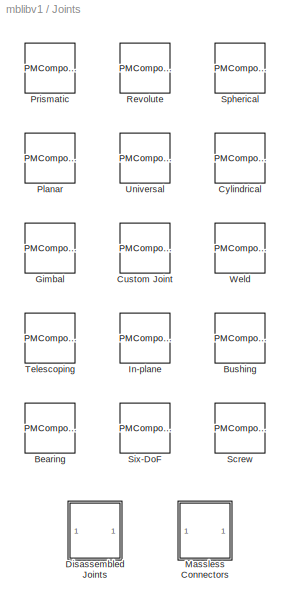
BLOCK [SubSystem] Joints
  MaskDisplay = image(mech_getIcon('joint_lib.bmp', 'Mechanical'))
  MaskIconFrame = on
  MaskIconOpaque = on
  MaskIconRotate = none
  MaskIconUnits = autoscale
  MinAlgLoopOccurrences = off
  Ports = []
  RTWSystemCode = Auto
  TreatAsAtomicUnit = off
BLOCK [PMComponent] Joints/Bearing
  CloseFcn = mech_support('CloseFcn',gcbh);
  CopyFcn = mech_support('CopyFcn',gcbh);
  DeleteFcn = mech_support('deleteFcn',gcbh);
  LConnTagsString = __newl0
  LeftPortType = blob
  LoadFcn = mech_support('LoadFcn',gcbh);
  MaskCallbackString = ||||||
  MaskDescription = Represents three rotational and one translational degrees of freedom. The follower (F) rotates around three primitive revolute axes (R1, R2, R3) and translates along one primitive prismatic axis P1 with respect to the base (B) Body. Axis P1 must be parallel to axis R3. R1 attached to base. P1 attached to follower. Listed order of primitives is order of motion during simulation. Sensor and actuator...<+149ch>
  MaskDisplay = image(mech_getIcon('bearing.bmp', 'Mechanical'),'center');color('red');text(mech_cutAffordance('offset', gcbh) - 2, 0, mech_cutAffordance('text', gcbh),'HorizontalAlignment', 'right','VerticalAlignment', 'bottom');color('magenta');port_label('LConn', 1, 'B');port_label('RConn', 1, 'F');
  MaskEnableString = on,on,on,on,on,on,on
  MaskHelp = web(mech_help('bearing'))
  MaskIconFrame = on
  MaskIconOpaque = on
  MaskIconRotate = none
  MaskIconUnits = pixels
  MaskPromptString = NumSAPorts|CutJoint|MarkAsCut|Primitives|PrimitiveProps|ClassName|DialogClass
  MaskSelfModifiable = on
  MaskStyleString = edit,edit,edit,edit,edit,edit,edit
  MaskTabNameString = ,,,,,,
  MaskToolTipString = on,on,on,on,on,on,on
  MaskTunableValueString = on,on,on,on,on,on,on
  MaskType = msb
  MaskValueString = 0|off|off|revolute_revolute_revolute_prismatic|R1$INERTIAL$[1 0 0]$revolute#R2$INERTIAL$[0 1 0]$revolute#R3$INERTIAL$[0 0 1]$revolute#P1$INERTIAL$[0 0 1]$prismatic|BearingJoint|JointBlock|
  MaskVarAliasString = ,,,,,,
  MaskVariables = NumSAPorts=@1;CutJoint=&2;MarkAsCut=&3;Primitives=&4;PrimitiveProps=&5;ClassName=&6;DialogClass=&7;
  MaskVisibilityString = on,on,on,on,off,on,on
  ModelCloseFcn = mech_support('modelCloseFcn',gcbh);
  NameChangeFcn = mech_support('nameChangeFcn',gcbh);
  OpenFcn = mech_support('openFcn',gcbh);
  PhysicalDomain = mechanical
  Ports = [0, 0, 0, 0, 0, 1, 1]
  PostSaveFcn = mech_support('PostSaveFcn');
  PreSaveFcn = mech_support('PreSaveFcn');
  RConnTagsString = __newr0
  RightPortType = blob
  StartFcn = mech_support('StartFcn',gcbh);
  StopFcn = mech_support('StopFcn',gcbh);
  SubClassName = Unknown
  UndoDeleteFcn = mech_support('undoDeleteFcn',gcbh);
BLOCK [PMComponent] Joints/Bushing
  CloseFcn = mech_support('CloseFcn',gcbh);
  CopyFcn = mech_support('CopyFcn',gcbh);
  DeleteFcn = mech_support('deleteFcn',gcbh);
  LConnTagsString = __newl0
  LeftPortType = blob
  LoadFcn = mech_support('LoadFcn',gcbh);
  MaskCallbackString = ||||||
  MaskDescription = Represents three rotational and three translational degrees of freedom. The follower (F) translates along three primitive prismatic axes (P1, P2, P3) and rotates around three primitive revolute axes (R1, R2, R3) relative to the base (B) Body. P1 attached to base. R3 attached to follower. Listed order of primitives is order of motion during simulation. Sensor and actuator ports can be added. Base-f...<+140ch>
  MaskDisplay = image(mech_getIcon('bushing.bmp', 'Mechanical'),'center');color('red');text(mech_cutAffordance('offset', gcbh) - 2, 0, mech_cutAffordance('text', gcbh),'HorizontalAlignment', 'right','VerticalAlignment', 'bottom');color('magenta');port_label('LConn', 1, 'B');port_label('RConn', 1, 'F');
  MaskEnableString = on,on,on,on,on,on,on
  MaskHelp = web(mech_help('bushing'))
  MaskIconFrame = on
  MaskIconOpaque = on
  MaskIconRotate = none
  MaskIconUnits = pixels
  MaskPromptString = NumSAPorts|CutJoint|MarkAsCut|Primitives|PrimitiveProps|ClassName|DialogClass
  MaskSelfModifiable = on
  MaskStyleString = edit,edit,edit,edit,edit,edit,edit
  MaskTabNameString = ,,,,,,
  MaskToolTipString = on,on,on,on,on,on,on
  MaskTunableValueString = on,on,on,on,on,on,on
  MaskType = msb
  MaskValueString = 0|off|off|prismatic_prismatic_prismatic_revolute_revolute_revolute|P1$INERTIAL$[1 0 0]$prismatic#P2$INERTIAL$[0 1 0]$prismatic#P3$INERTIAL$[0 0 1]$prismatic#R1$INERTIAL$[1 0 0]$revolute#R2$INERTIAL$[0 1 0]$revolute#R3$INERTIAL$[0 0 1]$revolute|Joint|JointBlock|
  MaskVarAliasString = ,,,,,,
  MaskVariables = NumSAPorts=@1;CutJoint=&2;MarkAsCut=&3;Primitives=&4;PrimitiveProps=&5;ClassName=&6;DialogClass=&7;
  MaskVisibilityString = on,on,on,on,off,on,on
  ModelCloseFcn = mech_support('modelCloseFcn',gcbh);
  NameChangeFcn = mech_support('nameChangeFcn',gcbh);
  OpenFcn = mech_support('openFcn',gcbh);
  PhysicalDomain = mechanical
  Ports = [0, 0, 0, 0, 0, 1, 1]
  PostSaveFcn = mech_support('PostSaveFcn');
  PreSaveFcn = mech_support('PreSaveFcn');
  RConnTagsString = __newr0
  RightPortType = blob
  StartFcn = mech_support('StartFcn',gcbh);
  StopFcn = mech_support('StopFcn',gcbh);
  SubClassName = Unknown
  UndoDeleteFcn = mech_support('undoDeleteFcn',gcbh);
BLOCK [PMComponent] Joints/Custom Joint
  CloseFcn = mech_support('CloseFcn',gcbh);
  CopyFcn = mech_support('CopyFcn',gcbh);
  DeleteFcn = mech_support('deleteFcn',gcbh);
  LConnTagsString = __newl0
  LeftPortType = blob
  LoadFcn = mech_support('LoadFcn',gcbh);
  MaskCallbackString = ||||||
  MaskDescription = Represents general user-defined joint with multiple degrees of freedom. Connects two Bodies with combination of prismatic, revolute, and/or spherical primitives. This Joint limited to maximum of six DoFs: up to three rotational DoFs and up to three translational DoFs. First primitive attached to base (B). Last primitive attached to follower (F). Listed order of primitives is order of motion during...<+238ch>
  MaskDisplay = image(mech_getIcon('comp_joint.bmp', 'Mechanical'),'center');color('red');text(mech_cutAffordance('offset', gcbh) - 2, 0, mech_cutAffordance('text', gcbh),'HorizontalAlignment', 'right','VerticalAlignment', 'bottom');color('magenta');port_label('LConn', 1, 'B');port_label('RConn', 1, 'F');
  MaskEnableString = on,on,on,on,on,on,on
  MaskHelp = web(mech_help('customjoint'))
  MaskIconFrame = on
  MaskIconOpaque = on
  MaskIconRotate = none
  MaskIconUnits = pixels
  MaskPromptString = NumSAPorts|CutJoint|MarkAsCut|Primitives|PrimitiveProps|ClassName|DialogClass
  MaskSelfModifiable = on
  MaskStyleString = edit,edit,edit,edit,edit,edit,edit
  MaskTabNameString = ,,,,,,
  MaskToolTipString = on,on,on,on,on,on,on
  MaskTunableValueString = on,on,on,on,on,on,on
  MaskType = msb
  MaskValueString = 0|off|off|revolute|R1$INERTIAL$[0 0 1]$revolute|Joint|JointBlock|
  MaskVarAliasString = ,,,,,,
  MaskVariables = NumSAPorts=@1;CutJoint=&2;MarkAsCut=&3;Primitives=&4;PrimitiveProps=&5;ClassName=&6;DialogClass=&7;
  MaskVisibilityString = on,on,on,on,off,on,on
  ModelCloseFcn = mech_support('modelCloseFcn',gcbh);
  NameChangeFcn = mech_support('nameChangeFcn',gcbh);
  OpenFcn = mech_support('openFcn',gcbh);
  PhysicalDomain = mechanical
  Ports = [0, 0, 0, 0, 0, 1, 1]
  PostSaveFcn = mech_support('PostSaveFcn');
  PreSaveFcn = mech_support('PreSaveFcn');
  RConnTagsString = __newr0
  RightPortType = blob
  StartFcn = mech_support('StartFcn',gcbh);
  StopFcn = mech_support('StopFcn',gcbh);
  SubClassName = custom_joint
  UndoDeleteFcn = mech_support('undoDeleteFcn',gcbh);
BLOCK [PMComponent] Joints/Cylindrical
  CloseFcn = mech_support('CloseFcn',gcbh);
  CopyFcn = mech_support('CopyFcn',gcbh);
  DeleteFcn = mech_support('deleteFcn',gcbh);
  LConnTagsString = __newl0
  LeftPortType = blob
  LoadFcn = mech_support('LoadFcn',gcbh);
  MaskCallbackString = ||||||
  MaskDescription = Represents one translational and one rotational degrees of freedom. Restricts the follower (F) to move relative to the base (B) Body along and around a common axis P1-R1. Primitive axes P1 and R1 must be aligned. P1 attached to base. R1 attached to follower. Listed order of primitives is order of motion during simulation. Sensor and actuator ports can be added. Base-follower sequence and axis dire...<+39ch>
  MaskDisplay = image(mech_getIcon('cylindrical.bmp', 'Mechanical'),'center');color('red');text(mech_cutAffordance('offset', gcbh) - 2, 0, mech_cutAffordance('text', gcbh),'HorizontalAlignment', 'right','VerticalAlignment', 'bottom');color('magenta');port_label('LConn', 1, 'B');port_label('RConn', 1, 'F');
  MaskEnableString = on,on,on,on,on,on,on
  MaskHelp = web(mech_help('cylindrical'))
  MaskIconFrame = on
  MaskIconOpaque = on
  MaskIconRotate = none
  MaskIconUnits = pixels
  MaskPromptString = NumSAPorts|CutJoint|MarkAsCut|Primitives|PrimitiveProps|ClassName|DialogClass
  MaskSelfModifiable = on
  MaskStyleString = edit,edit,edit,edit,edit,edit,edit
  MaskTabNameString = ,,,,,,
  MaskToolTipString = on,on,on,on,on,on,on
  MaskTunableValueString = on,on,on,on,on,on,on
  MaskType = msb
  MaskValueString = 0|off|off|prismatic_revolute|P1$INERTIAL$[1 0 0]$prismatic#R1$INERTIAL$[1 0 0]$revolute|CylindricalJoint|JointBlock|
  MaskVarAliasString = ,,,,,,
  MaskVariables = NumSAPorts=@1;CutJoint=&2;MarkAsCut=&3;Primitives=&4;PrimitiveProps=&5;ClassName=&6;DialogClass=&7;
  MaskVisibilityString = on,on,on,on,off,on,on
  ModelCloseFcn = mech_support('modelCloseFcn',gcbh);
  NameChangeFcn = mech_support('nameChangeFcn',gcbh);
  OpenFcn = mech_support('openFcn',gcbh);
  PhysicalDomain = mechanical
  Ports = [0, 0, 0, 0, 0, 1, 1]
  PostSaveFcn = mech_support('PostSaveFcn');
  PreSaveFcn = mech_support('PreSaveFcn');
  RConnTagsString = __newr0
  RightPortType = blob
  StartFcn = mech_support('StartFcn',gcbh);
  StopFcn = mech_support('StopFcn',gcbh);
  SubClassName = Unknown
  UndoDeleteFcn = mech_support('undoDeleteFcn',gcbh);
BLOCK [SubSystem] Joints/Disassembled Joints
  MaskDisplay = image(mech_getIcon('joint_lib.bmp', 'Mechanical'))
  MaskIconFrame = on
  MaskIconOpaque = on
  MaskIconRotate = none
  MaskIconUnits = autoscale
  MinAlgLoopOccurrences = off
  Ports = []
  RTWSystemCode = Auto
  TreatAsAtomicUnit = off
BLOCK [PMComponent] Joints/Disassembled Joints/Disassembled Cylindrical
  CloseFcn = mech_support('CloseFcn',gcbh);
  CopyFcn = mech_support('CopyFcn',gcbh);
  DeleteFcn = mech_support('deleteFcn',gcbh);
  LConnTagsString = __newl0
  LeftPortType = blob
  LoadFcn = mech_support('LoadFcn',gcbh);
  MaskCallbackString = |||
  MaskDescription = Creates two misaligned cylindrical joints, one attached to the base (B) and other attached to the follower (F) Body. Axes and Body coordinate systems are automatically aligned at simulation start. Cannot be sensed or actuated. Must only be used in closed loops.
  MaskDisplay = image(mech_getIcon('cylindrical.bmp', 'Mechanical'),'center');image(mech_getIcon('dis_affordance.bmp', 'Mechanical'),'bottom-left');color('magenta');port_label('LConn',1,'B'); port_label('RConn',1,'F')
  MaskEnableString = on,on,on,on
  MaskHelp = web(mech_help('disassembledcylindrical'))
  MaskIconFrame = on
  MaskIconOpaque = on
  MaskIconRotate = none
  MaskIconUnits = pixels
  MaskPromptString = DialogClass|Primitives|PrimitiveProps|ClassName
  MaskSelfModifiable = on
  MaskStyleString = edit,edit,edit,edit
  MaskTabNameString = ,,,
  MaskToolTipString = on,on,on,on
  MaskTunableValueString = on,on,on,on
  MaskType = msb
  MaskValueString = JointBlock|prismatic_prismatic|Base$INERTIAL$[1 0 0]$prismatic#Follower$INERTIAL$[0 1 0]$prismatic|DisassembledCylindrical
  MaskVarAliasString = ,,,
  MaskVariables = DialogClass=&1;Primitives=&2;PrimitiveProps=&3;ClassName=&4;
  MaskVisibilityString = on,on,off,on
  ModelCloseFcn = mech_support('modelCloseFcn',gcbh);
  NameChangeFcn = mech_support('nameChangeFcn',gcbh);
  OpenFcn = mech_support('openFcn',gcbh);
  PhysicalDomain = mechanical
  Ports = [0, 0, 0, 0, 0, 1, 1]
  RConnTagsString = __newr0
  RightPortType = blob
  StartFcn = mech_support('StartFcn',gcbh);
  StopFcn = mech_support('StopFcn',gcbh);
  SubClassName = disassembled_cylindrical_joint
  UndoDeleteFcn = mech_support('undoDeleteFcn',gcbh);
BLOCK [PMComponent] Joints/Disassembled Joints/Disassembled Prismatic
  CloseFcn = mech_support('CloseFcn',gcbh);
  CopyFcn = mech_support('CopyFcn',gcbh);
  DeleteFcn = mech_support('deleteFcn',gcbh);
  LConnTagsString = __newl0
  LeftPortType = blob
  LoadFcn = mech_support('LoadFcn',gcbh);
  MaskCallbackString = |||
  MaskDescription = Creates two misaligned primitive prismatic axes, one attached to the base (B) and other attached to the follower (F) Body. Axes and Body coordinate systems are automatically aligned at simulation start. Cannot be sensed or actuated. Must only be used in closed loops.
  MaskDisplay = image(mech_getIcon('prismatic.bmp', 'Mechanical'),'center');image(mech_getIcon('dis_affordance.bmp', 'Mechanical'),'bottom-left');color('magenta');port_label('LConn',1,'B'); port_label('RConn',1,'F')
  MaskEnableString = on,on,on,on
  MaskHelp = web(mech_help('disassembledprismatic'))
  MaskIconFrame = on
  MaskIconOpaque = on
  MaskIconRotate = none
  MaskIconUnits = pixels
  MaskPromptString = DialogClass|Primitives|PrimitiveProps|ClassName
  MaskSelfModifiable = on
  MaskStyleString = edit,edit,edit,edit
  MaskTabNameString = ,,,
  MaskToolTipString = on,on,on,on
  MaskTunableValueString = on,on,on,on
  MaskType = msb
  MaskValueString = JointBlock|prismatic_prismatic|Base$INERTIAL$[1 0 0]$prismatic#Follower$INERTIAL$[0 1 0]$prismatic|DisassembledPrismatic
  MaskVarAliasString = ,,,
  MaskVariables = DialogClass=&1;Primitives=&2;PrimitiveProps=&3;ClassName=&4;
  MaskVisibilityString = on,on,off,on
  ModelCloseFcn = mech_support('modelCloseFcn',gcbh);
  NameChangeFcn = mech_support('nameChangeFcn',gcbh);
  OpenFcn = mech_support('openFcn',gcbh);
  PhysicalDomain = mechanical
  Ports = [0, 0, 0, 0, 0, 1, 1]
  RConnTagsString = __newr0
  RightPortType = blob
  StartFcn = mech_support('StartFcn',gcbh);
  StopFcn = mech_support('StopFcn',gcbh);
  SubClassName = disassembled_prismatic_joint
  UndoDeleteFcn = mech_support('undoDeleteFcn',gcbh);
BLOCK [PMComponent] Joints/Disassembled Joints/Disassembled Revolute
  CloseFcn = mech_support('CloseFcn',gcbh);
  CopyFcn = mech_support('CopyFcn',gcbh);
  DeleteFcn = mech_support('deleteFcn',gcbh);
  LConnTagsString = __newl0
  LeftPortType = blob
  LoadFcn = mech_support('LoadFcn',gcbh);
  MaskCallbackString = |||
  MaskDescription = Creates two misaligned primitive revolute axes, one attached to the base (B) and other attached to the follower (F) Body. Axes and Body coordinate systems are automatically aligned at simulation start. Cannot be sensed or actuated. Must only be used in closed loops.
  MaskDisplay = image(mech_getIcon('revolute.bmp', 'Mechanical'),'center');image(mech_getIcon('dis_affordance.bmp', 'Mechanical'),'bottom-left');color('magenta');port_label('LConn',1,'B'); port_label('RConn',1,'F')
  MaskEnableString = on,on,on,on
  MaskHelp = web(mech_help('disassembledrevolute'))
  MaskIconFrame = on
  MaskIconOpaque = on
  MaskIconRotate = none
  MaskIconUnits = pixels
  MaskPromptString = DialogClass|Primitives|PrimitiveProps|ClassName
  MaskSelfModifiable = on
  MaskStyleString = edit,edit,edit,edit
  MaskTabNameString = ,,,
  MaskToolTipString = on,on,on,on
  MaskTunableValueString = on,on,on,on
  MaskType = msb
  MaskValueString = JointBlock|prismatic_prismatic|Base$INERTIAL$[1 0 0]$prismatic#Follower$INERTIAL$[0 1 0]$prismatic|DisassembledRevolute
  MaskVarAliasString = ,,,
  MaskVariables = DialogClass=&1;Primitives=&2;PrimitiveProps=&3;ClassName=&4;
  MaskVisibilityString = on,on,off,on
  ModelCloseFcn = mech_support('modelCloseFcn',gcbh);
  NameChangeFcn = mech_support('nameChangeFcn',gcbh);
  OpenFcn = mech_support('openFcn',gcbh);
  PhysicalDomain = mechanical
  Ports = [0, 0, 0, 0, 0, 1, 1]
  RConnTagsString = __newr0
  RightPortType = blob
  StartFcn = mech_support('StartFcn',gcbh);
  StopFcn = mech_support('StopFcn',gcbh);
  SubClassName = disassembled_revolute_joint
  UndoDeleteFcn = mech_support('undoDeleteFcn',gcbh);
BLOCK [PMComponent] Joints/Disassembled Joints/Disassembled Spherical
  CloseFcn = mech_support('CloseFcn',gcbh);
  CopyFcn = mech_support('CopyFcn',gcbh);
  DeleteFcn = mech_support('deleteFcn',gcbh);
  LConnTagsString = __newl0
  LeftPortType = blob
  LoadFcn = mech_support('LoadFcn',gcbh);
  MaskCallbackString = |||
  MaskDescription = Creates two spatially dislocated origins of the base (B) and the follower (F) Body coordinate systems as spherical pivots attached to each Body. The origins/pivots are automatically collocated at simulation start. Cannot be sensed or actuated. Must only be used in closed loops.
  MaskDisplay = image(mech_getIcon('sphere.bmp', 'Mechanical'),'center');image(mech_getIcon('dis_affordance.bmp', 'Mechanical'),'bottom-left');color('magenta');port_label('LConn',1,'B'); port_label('RConn',1,'F')
  MaskEnableString = on,on,on,on
  MaskHelp = web(mech_help('disassembledspherical'))
  MaskIconFrame = on
  MaskIconOpaque = on
  MaskIconRotate = none
  MaskIconUnits = pixels
  MaskPromptString = DialogClass|Primitives|PrimitiveProps|ClassName
  MaskSelfModifiable = on
  MaskStyleString = edit,edit,edit,edit
  MaskTabNameString = ,,,
  MaskToolTipString = on,on,on,on
  MaskTunableValueString = on,on,on,on
  MaskType = msb
  MaskValueString = JointBlock|prismatic_prismatic|Base$INERTIAL$[1 0 0]$prismatic#Follower$INERTIAL$[0 1 0]$prismatic|DisassembledSpherical
  MaskVarAliasString = ,,,
  MaskVariables = DialogClass=&1;Primitives=&2;PrimitiveProps=&3;ClassName=&4;
  MaskVisibilityString = on,on,off,on
  ModelCloseFcn = mech_support('modelCloseFcn',gcbh);
  NameChangeFcn = mech_support('nameChangeFcn',gcbh);
  OpenFcn = mech_support('openFcn',gcbh);
  PhysicalDomain = mechanical
  Ports = [0, 0, 0, 0, 0, 1, 1]
  RConnTagsString = __newr0
  RightPortType = blob
  StartFcn = mech_support('StartFcn',gcbh);
  StopFcn = mech_support('StopFcn',gcbh);
  SubClassName = disassembled_spherical_joint
  UndoDeleteFcn = mech_support('undoDeleteFcn',gcbh);
BLOCK [PMComponent] Joints/Gimbal
  CloseFcn = mech_support('CloseFcn',gcbh);
  CopyFcn = mech_support('CopyFcn',gcbh);
  DeleteFcn = mech_support('deleteFcn',gcbh);
  LConnTagsString = __newl0
  LeftPortType = blob
  LoadFcn = mech_support('LoadFcn',gcbh);
  MaskCallbackString = ||||||
  MaskDescription = Represents three rotational degrees of freedom. The follower (F) rotates with respect to the base (B) Body around three primitive revolute axes (R1, R2, R3). R1 attached to base. R3 attached to follower. Listed order of primitives is order of motion during simulation. Sensor and actuator ports can be added. Base-follower sequence and axes directions determine sign of forward motion. This joint bec...<+37ch>
  MaskDisplay = image(mech_getIcon('gimbal.bmp', 'Mechanical'),'center');color('red');text(mech_cutAffordance('offset', gcbh) - 2, 0, mech_cutAffordance('text', gcbh),'HorizontalAlignment', 'right','VerticalAlignment', 'bottom');color('magenta');port_label('LConn', 1, 'B');port_label('RConn', 1, 'F');
  MaskEnableString = on,on,on,on,on,on,on
  MaskHelp = web(mech_help('gimbal'))
  MaskIconFrame = on
  MaskIconOpaque = on
  MaskIconRotate = none
  MaskIconUnits = pixels
  MaskPromptString = NumSAPorts|CutJoint|MarkAsCut|Primitives|PrimitiveProps|ClassName|DialogClass
  MaskSelfModifiable = on
  MaskStyleString = edit,edit,edit,edit,edit,edit,edit
  MaskTabNameString = ,,,,,,
  MaskToolTipString = on,on,on,on,on,on,on
  MaskTunableValueString = on,on,on,on,on,on,on
  MaskType = msb
  MaskValueString = 0|off|off|revolute_revolute_revolute|R1$INERTIAL$[1 0 0]$revolute#R2$INERTIAL$[0 1 0]$revolute#R3$INERTIAL$[0 0 1]$revolute|Joint|JointBlock|
  MaskVarAliasString = ,,,,,,
  MaskVariables = NumSAPorts=@1;CutJoint=&2;MarkAsCut=&3;Primitives=&4;PrimitiveProps=&5;ClassName=&6;DialogClass=&7;
  MaskVisibilityString = on,on,on,on,off,on,on
  ModelCloseFcn = mech_support('modelCloseFcn',gcbh);
  NameChangeFcn = mech_support('nameChangeFcn',gcbh);
  OpenFcn = mech_support('openFcn',gcbh);
  PhysicalDomain = mechanical
  Ports = [0, 0, 0, 0, 0, 1, 1]
  PostSaveFcn = mech_support('PostSaveFcn');
  PreSaveFcn = mech_support('PreSaveFcn');
  RConnTagsString = __newr0
  RightPortType = blob
  StartFcn = mech_support('StartFcn',gcbh);
  StopFcn = mech_support('StopFcn',gcbh);
  SubClassName = Unknown
  UndoDeleteFcn = mech_support('undoDeleteFcn',gcbh);
BLOCK [PMComponent] Joints/In-plane
  CloseFcn = mech_support('CloseFcn',gcbh);
  CopyFcn = mech_support('CopyFcn',gcbh);
  DeleteFcn = mech_support('deleteFcn',gcbh);
  LConnTagsString = __newl0
  LeftPortType = blob
  LoadFcn = mech_support('LoadFcn',gcbh);
  MaskCallbackString = ||||||
  MaskDescription = Represents two translational degrees of freedom. Restricts the follower (F) to move relative to the base (B) Body in plane defined by span of two primitive prismatic axes (P1, P2). P1 attached to base. P2 attached to follower. Listed order of primitives is order of motion during simulation. Sensor and actuator ports can be added. Base-follower sequence and axes directions determine sign of forward...<+62ch>
  MaskDisplay = image(mech_getIcon('inplane.bmp', 'Mechanical'),'center');color('red');text(mech_cutAffordance('offset', gcbh) - 2, 0, mech_cutAffordance('text', gcbh),'HorizontalAlignment', 'right','VerticalAlignment', 'bottom');color('magenta');port_label('LConn', 1, 'B');port_label('RConn', 1, 'F');
  MaskEnableString = on,on,on,on,on,on,on
  MaskHelp = web(mech_help('inplane'))
  MaskIconFrame = on
  MaskIconOpaque = on
  MaskIconRotate = none
  MaskIconUnits = pixels
  MaskPromptString = NumSAPorts|CutJoint|MarkAsCut|Primitives|PrimitiveProps|ClassName|DialogClass
  MaskSelfModifiable = on
  MaskStyleString = edit,edit,edit,edit,edit,edit,edit
  MaskTabNameString = ,,,,,,
  MaskToolTipString = on,on,on,on,on,on,on
  MaskTunableValueString = on,on,on,on,on,on,on
  MaskType = msb
  MaskValueString = 0|off|off|prismatic_prismatic|P1$INERTIAL$[1 0 0]$prismatic#P2$INERTIAL$[0 1 0]$prismatic|InplaneJoint|JointBlock|
  MaskVarAliasString = ,,,,,,
  MaskVariables = NumSAPorts=@1;CutJoint=&2;MarkAsCut=&3;Primitives=&4;PrimitiveProps=&5;ClassName=&6;DialogClass=&7;
  MaskVisibilityString = on,on,on,on,off,on,on
  ModelCloseFcn = mech_support('modelCloseFcn',gcbh);
  NameChangeFcn = mech_support('nameChangeFcn',gcbh);
  OpenFcn = mech_support('openFcn',gcbh);
  PhysicalDomain = mechanical
  Ports = [0, 0, 0, 0, 0, 1, 1]
  PostSaveFcn = mech_support('PostSaveFcn');
  PreSaveFcn = mech_support('PreSaveFcn');
  RConnTagsString = __newr0
  RightPortType = blob
  StartFcn = mech_support('StartFcn',gcbh);
  StopFcn = mech_support('StopFcn',gcbh);
  SubClassName = Unknown
  UndoDeleteFcn = mech_support('undoDeleteFcn',gcbh);
BLOCK [SubSystem] Joints/Massless Connectors
  MaskDisplay = image(mech_getIcon('joint_lib.bmp', 'Mechanical'))
  MaskIconFrame = on
  MaskIconOpaque = on
  MaskIconRotate = none
  MaskIconUnits = autoscale
  MinAlgLoopOccurrences = off
  Ports = []
  RTWSystemCode = Auto
  TreatAsAtomicUnit = off
BLOCK [PMComponent] Joints/Massless Connectors/Revolute-Revolute
  CloseFcn = mech_support('CloseFcn',gcbh);
  CopyFcn = mech_support('CopyFcn',gcbh);
  DeleteFcn = mech_support('deleteFcn',gcbh);
  LConnTagsString = __newl0
  LeftPortType = blob
  LoadFcn = mech_support('LoadFcn',gcbh);
  MaskCallbackString = ||||||
  MaskDescription = Creates two separated revolute axes on the base (B) and follower (F) Bodies. The separation vector between the base and follower Body coordinate systems changes, but the separation distance is constant. This joint becomes singular if the two revolute axes align with the separation vector. Cannot be sensed or actuated.
  MaskDisplay = image(mech_getIcon('rr_cplr.bmp', 'Mechanical'),'center');color('red');text(mech_cutAffordance('offset', gcbh) - 2, 0, mech_cutAffordance('text', gcbh),'HorizontalAlignment', 'right','VerticalAlignment', 'bottom');color('magenta');port_label('LConn', 1, 'B');port_label('RConn', 1, 'F');
  MaskEnableString = on,on,on,on,on,on,on
  MaskHelp = web(mech_help('revoluterevolute'))
  MaskIconFrame = on
  MaskIconOpaque = on
  MaskIconRotate = none
  MaskIconUnits = pixels
  MaskPromptString = NumSAPorts|CutJoint|MarkAsCut|Primitives|PrimitiveProps|ClassName|DialogClass
  MaskSelfModifiable = on
  MaskStyleString = edit,edit,edit,edit,edit,edit,edit
  MaskTabNameString = ,,,,,,
  MaskToolTipString = on,on,on,on,on,on,on
  MaskTunableValueString = on,on,on,on,on,on,on
  MaskType = msb
  MaskValueString = 0|off|off|revolute_revolute|R1$INERTIAL$[0 0 1]$revolute#R2$INERTIAL$[0 1 0]$revolute|MasslessRR|JointBlock|
  MaskVarAliasString = ,,,,,,
  MaskVariables = NumSAPorts=@1;CutJoint=&2;MarkAsCut=&3;Primitives=&4;PrimitiveProps=&5;ClassName=&6;DialogClass=&7;
  MaskVisibilityString = on,on,on,on,off,on,on
  ModelCloseFcn = mech_support('modelCloseFcn',gcbh);
  NameChangeFcn = mech_support('nameChangeFcn',gcbh);
  OpenFcn = mech_support('openFcn',gcbh);
  PhysicalDomain = mechanical
  Ports = [0, 0, 0, 0, 0, 1, 1]
  PostSaveFcn = mech_support('PostSaveFcn');
  PreSaveFcn = mech_support('PreSaveFcn');
  RConnTagsString = __newr0
  RightPortType = blob
  StartFcn = mech_support('StartFcn',gcbh);
  StopFcn = mech_support('StopFcn',gcbh);
  SubClassName = massless_connector
  UndoDeleteFcn = mech_support('undoDeleteFcn',gcbh);
BLOCK [PMComponent] Joints/Massless Connectors/Revolute-Spherical
  CloseFcn = mech_support('CloseFcn',gcbh);
  CopyFcn = mech_support('CopyFcn',gcbh);
  DeleteFcn = mech_support('deleteFcn',gcbh);
  LConnTagsString = __newl0
  LeftPortType = blob
  LoadFcn = mech_support('LoadFcn',gcbh);
  MaskCallbackString = ||||||
  MaskDescription = Creates separated revolute axis on the base (B) and spherical pivot point on the follower (F) Bodies. The separation vector between the base and follower Body coordinate systems changes, but the separation distance is constant. This joint becomes singular if the revolute axis aligns with the separation vector. Cannot be sensed or actuated.
  MaskDisplay = image(mech_getIcon('rs_cplr.bmp', 'Mechanical'),'center');color('red');text(mech_cutAffordance('offset', gcbh) - 2, 0, mech_cutAffordance('text', gcbh),'HorizontalAlignment', 'right','VerticalAlignment', 'bottom');color('magenta');port_label('LConn', 1, 'B');port_label('RConn', 1, 'F');
  MaskEnableString = on,on,on,on,on,on,on
  MaskHelp = web(mech_help('revolutespherical'))
  MaskIconFrame = on
  MaskIconOpaque = on
  MaskIconRotate = none
  MaskIconUnits = pixels
  MaskPromptString = NumSAPorts|CutJoint|MarkAsCut|Primitives|PrimitiveProps|ClassName|DialogClass
  MaskSelfModifiable = on
  MaskStyleString = edit,edit,edit,edit,edit,edit,edit
  MaskTabNameString = ,,,,,,
  MaskToolTipString = on,on,on,on,on,on,on
  MaskTunableValueString = on,on,on,on,on,on,on
  MaskType = msb
  MaskValueString = 0|off|off|revolute_spherical|R1$INERTIAL$[0 0 1]$revolute#S$INERTIAL$[0 0 0]$spherical|MasslessRS|JointBlock|
  MaskVarAliasString = ,,,,,,
  MaskVariables = NumSAPorts=@1;CutJoint=&2;MarkAsCut=&3;Primitives=&4;PrimitiveProps=&5;ClassName=&6;DialogClass=&7;
  MaskVisibilityString = on,on,on,on,off,on,on
  ModelCloseFcn = mech_support('modelCloseFcn',gcbh);
  NameChangeFcn = mech_support('nameChangeFcn',gcbh);
  OpenFcn = mech_support('openFcn',gcbh);
  PhysicalDomain = mechanical
  Ports = [0, 0, 0, 0, 0, 1, 1]
  PostSaveFcn = mech_support('PostSaveFcn');
  PreSaveFcn = mech_support('PreSaveFcn');
  RConnTagsString = __newr0
  RightPortType = blob
  StartFcn = mech_support('StartFcn',gcbh);
  StopFcn = mech_support('StopFcn',gcbh);
  SubClassName = massless_connector
  UndoDeleteFcn = mech_support('undoDeleteFcn',gcbh);
BLOCK [PMComponent] Joints/Massless Connectors/Spherical-Spherical
  CloseFcn = mech_support('CloseFcn',gcbh);
  CopyFcn = mech_support('CopyFcn',gcbh);
  DeleteFcn = mech_support('deleteFcn',gcbh);
  LConnTagsString = __newl0
  LeftPortType = blob
  LoadFcn = mech_support('LoadFcn',gcbh);
  MaskCallbackString = ||||||
  MaskDescription = Creates two separated spherical pivot points on the base (B) and follower (F) Bodies. The separation vector between the base and follower Body coordinate systems changes, but the separation distance is constant. Cannot be sensed or actuated.
  MaskDisplay = image(mech_getIcon('ss_cplr.bmp', 'Mechanical'),'center');color('red');text(mech_cutAffordance('offset', gcbh) - 2, 0, mech_cutAffordance('text', gcbh),'HorizontalAlignment', 'right','VerticalAlignment', 'bottom');color('magenta');port_label('LConn', 1, 'B');port_label('RConn', 1, 'F');
  MaskEnableString = on,on,on,on,on,on,on
  MaskHelp = web(mech_help('sphericalspherical'))
  MaskIconFrame = on
  MaskIconOpaque = on
  MaskIconRotate = none
  MaskIconUnits = pixels
  MaskPromptString = NumSAPorts|CutJoint|MarkAsCut|Primitives|PrimitiveProps|ClassName|DialogClass
  MaskSelfModifiable = on
  MaskStyleString = edit,edit,edit,edit,edit,edit,edit
  MaskTabNameString = ,,,,,,
  MaskToolTipString = on,on,on,on,on,on,on
  MaskTunableValueString = on,on,on,on,on,on,on
  MaskType = msb
  MaskValueString = 0|off|off|spherical_spherical|S1$INERTIAL$[0 0 0]$spherical#S2$INERTIAL$[0 0 0]$spherical|MasslessSS|JointBlock|
  MaskVarAliasString = ,,,,,,
  MaskVariables = NumSAPorts=@1;CutJoint=&2;MarkAsCut=&3;Primitives=&4;PrimitiveProps=&5;ClassName=&6;DialogClass=&7;
  MaskVisibilityString = on,on,on,on,off,on,on
  ModelCloseFcn = mech_support('modelCloseFcn',gcbh);
  NameChangeFcn = mech_support('nameChangeFcn',gcbh);
  OpenFcn = mech_support('openFcn',gcbh);
  PhysicalDomain = mechanical
  Ports = [0, 0, 0, 0, 0, 1, 1]
  PostSaveFcn = mech_support('PostSaveFcn');
  PreSaveFcn = mech_support('PreSaveFcn');
  RConnTagsString = __newr0
  RightPortType = blob
  StartFcn = mech_support('StartFcn',gcbh);
  StopFcn = mech_support('StopFcn',gcbh);
  SubClassName = massless_connector
  UndoDeleteFcn = mech_support('undoDeleteFcn',gcbh);
BLOCK [PMComponent] Joints/Planar
  CloseFcn = mech_support('CloseFcn',gcbh);
  CopyFcn = mech_support('CopyFcn',gcbh);
  DeleteFcn = mech_support('deleteFcn',gcbh);
  LConnTagsString = __newl0
  LeftPortType = blob
  LoadFcn = mech_support('LoadFcn',gcbh);
  MaskCallbackString = ||||||
  MaskDescription = Represents two translational and one rotational degrees of freedom. Restricts the follower (F) to move relative to the base (B) Body in plane defined by span of two primitive prismatic axes (P1, P2). follower can also rotate about axis R1 = P1 x P2. Axis R1 must be normal to plane. P1 attached to base. R1 attached to follower. Listed order of primitives is order of motion during simulation. Sensor...<+164ch>
  MaskDisplay = image(mech_getIcon('planar.bmp', 'Mechanical'),'center');color('red');text(mech_cutAffordance('offset', gcbh) - 2, 0, mech_cutAffordance('text', gcbh),'HorizontalAlignment', 'right','VerticalAlignment', 'bottom');color('magenta');port_label('LConn', 1, 'B');port_label('RConn', 1, 'F');
  MaskEnableString = on,on,on,on,on,on,on
  MaskHelp = web(mech_help('planar'))
  MaskIconFrame = on
  MaskIconOpaque = on
  MaskIconRotate = none
  MaskIconUnits = pixels
  MaskPromptString = NumSAPorts|CutJoint|MarkAsCut|Primitives|PrimitiveProps|ClassName|DialogClass
  MaskSelfModifiable = on
  MaskStyleString = edit,edit,edit,edit,edit,edit,edit
  MaskTabNameString = ,,,,,,
  MaskToolTipString = on,on,on,on,on,on,on
  MaskTunableValueString = on,on,on,on,on,on,on
  MaskType = msb
  MaskValueString = 0|off|off|prismatic_prismatic_revolute|P1$INERTIAL$[1 0 0]$prismatic#P2$INERTIAL$[0 1 0]$prismatic#R1$INERTIAL$[0 0 1]$revolute|PlanarJoint|JointBlock|
  MaskVarAliasString = ,,,,,,
  MaskVariables = NumSAPorts=@1;CutJoint=&2;MarkAsCut=&3;Primitives=&4;PrimitiveProps=&5;ClassName=&6;DialogClass=&7;
  MaskVisibilityString = on,on,on,on,off,on,on
  ModelCloseFcn = mech_support('modelCloseFcn',gcbh);
  NameChangeFcn = mech_support('nameChangeFcn',gcbh);
  OpenFcn = mech_support('openFcn',gcbh);
  PhysicalDomain = mechanical
  Ports = [0, 0, 0, 0, 0, 1, 1]
  PostSaveFcn = mech_support('PostSaveFcn');
  PreSaveFcn = mech_support('PreSaveFcn');
  RConnTagsString = __newr0
  RightPortType = blob
  StartFcn = mech_support('StartFcn',gcbh);
  StopFcn = mech_support('StopFcn',gcbh);
  SubClassName = Unknown
  UndoDeleteFcn = mech_support('undoDeleteFcn',gcbh);
BLOCK [PMComponent] Joints/Prismatic
  CloseFcn = mech_support('CloseFcn',gcbh);
  CopyFcn = mech_support('CopyFcn',gcbh);
  DeleteFcn = mech_support('deleteFcn',gcbh);
  LConnTagsString = __newl0
  LeftPortType = blob
  LoadFcn = mech_support('LoadFcn',gcbh);
  MaskCallbackString = ||||||
  MaskDescription = Represents one translational degree of freedom. The follower (F) body translates relative to the base (B) Body along single translational axis connecting Body coordinate origins. Sensor and actuator ports can be added. Base-follower sequence and axis direction determine sign of forward motion.
  MaskDisplay = image(mech_getIcon('prismatic.bmp', 'Mechanical'),'center');color('red');text(mech_cutAffordance('offset', gcbh) - 2, 0, mech_cutAffordance('text', gcbh),'HorizontalAlignment', 'right','VerticalAlignment', 'bottom');color('magenta');port_label('LConn', 1, 'B');port_label('RConn', 1, 'F');
  MaskEnableString = on,on,on,on,on,on,on
  MaskHelp = web(mech_help('prismatic'))
  MaskIconFrame = on
  MaskIconOpaque = on
  MaskIconRotate = none
  MaskIconUnits = pixels
  MaskPromptString = NumSAPorts|CutJoint|MarkAsCut|Primitives|PrimitiveProps|ClassName|DialogClass
  MaskSelfModifiable = on
  MaskStyleString = edit,edit,edit,edit,edit,edit,edit
  MaskTabNameString = ,,,,,,
  MaskToolTipString = on,on,on,on,on,on,on
  MaskTunableValueString = on,on,on,on,on,on,on
  MaskType = msb
  MaskValueString = 0|off|off|prismatic|P1$INERTIAL$[0 0 1]$prismatic|Joint|JointBlock|
  MaskVarAliasString = ,,,,,,
  MaskVariables = NumSAPorts=@1;CutJoint=&2;MarkAsCut=&3;Primitives=&4;PrimitiveProps=&5;ClassName=&6;DialogClass=&7;
  MaskVisibilityString = on,on,on,on,off,on,on
  ModelCloseFcn = mech_support('modelCloseFcn',gcbh);
  NameChangeFcn = mech_support('nameChangeFcn',gcbh);
  OpenFcn = mech_support('openFcn',gcbh);
  PhysicalDomain = mechanical
  Ports = [0, 0, 0, 0, 0, 1, 1]
  PostSaveFcn = mech_support('PostSaveFcn');
  PreSaveFcn = mech_support('PreSaveFcn');
  RConnTagsString = __newr0
  RightPortType = blob
  StartFcn = mech_support('StartFcn',gcbh);
  StopFcn = mech_support('StopFcn',gcbh);
  SubClassName = Unknown
  UndoDeleteFcn = mech_support('undoDeleteFcn',gcbh);
BLOCK [PMComponent] Joints/Revolute
  CloseFcn = mech_support('CloseFcn',gcbh);
  CopyFcn = mech_support('CopyFcn',gcbh);
  DeleteFcn = mech_support('deleteFcn',gcbh);
  LConnTagsString = __newl0
  LeftPortType = blob
  LoadFcn = mech_support('LoadFcn',gcbh);
  MaskCallbackString = ||||||
  MaskDescription = Represents one rotational degree of freedom. The follower (F) Body rotates relative to the base (B) Body about a single rotational axis going through collocated Body coordinate system origins. Sensor and actuator ports can be added. Base-follower sequence and axis direction determine sign of forward motion by the right-hand rule.
  MaskDisplay = image(mech_getIcon('revolute.bmp', 'Mechanical'),'center');color('red');text(mech_cutAffordance('offset', gcbh) - 2, 0, mech_cutAffordance('text', gcbh),'HorizontalAlignment', 'right','VerticalAlignment', 'bottom');color('magenta');port_label('LConn', 1, 'B');port_label('RConn', 1, 'F');
  MaskEnableString = on,on,on,on,on,on,on
  MaskHelp = web(mech_help('revolute'))
  MaskIconFrame = on
  MaskIconOpaque = on
  MaskIconRotate = none
  MaskIconUnits = pixels
  MaskPromptString = NumSAPorts|CutJoint|MarkAsCut|Primitives|PrimitiveProps|ClassName|DialogClass
  MaskSelfModifiable = on
  MaskStyleString = edit,edit,edit,edit,edit,edit,edit
  MaskTabNameString = ,,,,,,
  MaskToolTipString = on,on,on,on,on,on,on
  MaskTunableValueString = on,on,on,on,on,on,on
  MaskType = msb
  MaskValueString = 0|off|off|revolute|R1$INERTIAL$[0 0 1]$revolute|Joint|JointBlock|
  MaskVarAliasString = ,,,,,,
  MaskVariables = NumSAPorts=@1;CutJoint=&2;MarkAsCut=&3;Primitives=&4;PrimitiveProps=&5;ClassName=&6;DialogClass=&7;
  MaskVisibilityString = on,on,on,on,off,on,on
  ModelCloseFcn = mech_support('modelCloseFcn',gcbh);
  NameChangeFcn = mech_support('nameChangeFcn',gcbh);
  OpenFcn = mech_support('openFcn',gcbh);
  PhysicalDomain = mechanical
  Ports = [0, 0, 0, 0, 0, 1, 1]
  PostSaveFcn = mech_support('PostSaveFcn');
  PreSaveFcn = mech_support('PreSaveFcn');
  RConnTagsString = __newr0
  RightPortType = blob
  StartFcn = mech_support('StartFcn',gcbh);
  StopFcn = mech_support('StopFcn',gcbh);
  SubClassName = Unknown
  UndoDeleteFcn = mech_support('undoDeleteFcn',gcbh);
BLOCK [PMComponent] Joints/Screw
  CloseFcn = mech_support('CloseFcn',gcbh);
  CopyFcn = mech_support('CopyFcn',gcbh);
  DeleteFcn = mech_support('deleteFcn',gcbh);
  LConnTagsString = __newl0
  LeftPortType = blob
  LoadFcn = mech_support('LoadFcn',gcbh);
  MaskCallbackString = ||||||||
  MaskDescription = Represents one translational and one rotational degrees of freedom, with constraint. Restricts the follower (F) to move in helical motion along and around axis R1 relative to the base (B) Body. Translation and rotation constrained to each other by pitch. R1 attached to base and follower. Sensor and actuator ports can be added. Base-follower sequence and axis direction determine sign of forward mot...<+4ch>
  MaskDisplay = image(mech_getIcon('screw.bmp', 'Mechanical'),'center');color('red');text(mech_cutAffordance('offset', gcbh) - 2, 0, mech_cutAffordance('text', gcbh),'HorizontalAlignment', 'right','VerticalAlignment', 'bottom');color('magenta');port_label('LConn', 1, 'B');port_label('RConn', 1, 'F');
  MaskEnableString = on,on,on,on,on,on,on,on,on
  MaskHelp = web(mech_help('screw'))
  MaskIconFrame = on
  MaskIconOpaque = on
  MaskIconRotate = none
  MaskIconUnits = pixels
  MaskPromptString = NumSAPorts|CutJoint|MarkAsCut|Primitives|PrimitiveProps|ClassName|DialogClass|Pitch|Units
  MaskSelfModifiable = on
  MaskStyleString = edit,edit,edit,edit,edit,edit,edit,edit,edit
  MaskTabNameString = ,,,,,,,,
  MaskToolTipString = on,on,on,on,on,on,on,on,on
  MaskTunableValueString = on,on,on,on,on,on,on,on,on
  MaskType = msb
  MaskValueString = 0|off|off|revolute|R1$INERTIAL$[1 0 0]$revolute|ScrewJoint|ScrewJointBlock|1|mm|
  MaskVarAliasString = ,,,,,,,,
  MaskVariables = NumSAPorts=@1;CutJoint=&2;MarkAsCut=&3;Primitives=&4;PrimitiveProps=&5;ClassName=&6;DialogClass=&7;Pitch=@8;Units=&9;
  MaskVisibilityString = on,on,on,on,off,on,on,on,on
  ModelCloseFcn = mech_support('modelCloseFcn',gcbh);
  NameChangeFcn = mech_support('nameChangeFcn',gcbh);
  OpenFcn = mech_support('openFcn',gcbh);
  PhysicalDomain = mechanical
  Ports = [0, 0, 0, 0, 0, 1, 1]
  PostSaveFcn = mech_support('PostSaveFcn');
  PreSaveFcn = mech_support('PreSaveFcn');
  RConnTagsString = __newr0
  RightPortType = blob
  StartFcn = mech_support('StartFcn',gcbh);
  StopFcn = mech_support('StopFcn',gcbh);
  SubClassName = Unknown
  UndoDeleteFcn = mech_support('undoDeleteFcn',gcbh);
BLOCK [PMComponent] Joints/Six-DoF
  CloseFcn = mech_support('CloseFcn',gcbh);
  CopyFcn = mech_support('CopyFcn',gcbh);
  DeleteFcn = mech_support('deleteFcn',gcbh);
  LConnTagsString = __newl0
  LeftPortType = blob
  LoadFcn = mech_support('LoadFcn',gcbh);
  MaskCallbackString = ||||||
  MaskDescription = Represents three translational and three rotational degrees of freedom. Rotational DoFs are in one spherical primitive. Represents most general motion of the follower (F) with respect to the base (B) Body. P1 attached to base. S attached to follower. Listed order of primitives is order of motion during simulation. Sensor and actuator ports can be added. Spherical primitive cannot be actuated. Base...<+125ch>
  MaskDisplay = image(mech_getIcon('6dof.bmp', 'Mechanical'),'center');color('red');text(mech_cutAffordance('offset', gcbh) - 2, 0, mech_cutAffordance('text', gcbh),'HorizontalAlignment', 'right','VerticalAlignment', 'bottom');color('magenta');port_label('LConn', 1, 'B');port_label('RConn', 1, 'F');
  MaskEnableString = on,on,on,on,on,on,on
  MaskHelp = web(mech_help('sixdof'))
  MaskIconFrame = on
  MaskIconOpaque = on
  MaskIconRotate = none
  MaskIconUnits = pixels
  MaskPromptString = NumSAPorts|CutJoint|MarkAsCut|Primitives|PrimitiveProps|ClassName|DialogClass
  MaskSelfModifiable = on
  MaskStyleString = edit,edit,edit,edit,edit,edit,edit
  MaskTabNameString = ,,,,,,
  MaskToolTipString = on,on,on,on,on,on,on
  MaskTunableValueString = on,on,on,on,on,on,on
  MaskType = msb
  MaskValueString = 0|off|off|prismatic_prismatic_prismatic_spherical|P1$INERTIAL$[1 0 0]$prismatic#P2$INERTIAL$[0 1 0]$prismatic#P3$INERTIAL$[0 0 1]$prismatic#S$INERTIAL$[0 0 0]$spherical|Joint|JointBlock|
  MaskVarAliasString = ,,,,,,
  MaskVariables = NumSAPorts=@1;CutJoint=&2;MarkAsCut=&3;Primitives=&4;PrimitiveProps=&5;ClassName=&6;DialogClass=&7;
  MaskVisibilityString = on,on,on,on,off,on,on
  ModelCloseFcn = mech_support('modelCloseFcn',gcbh);
  NameChangeFcn = mech_support('nameChangeFcn',gcbh);
  OpenFcn = mech_support('openFcn',gcbh);
  PhysicalDomain = mechanical
  Ports = [0, 0, 0, 0, 0, 1, 1]
  PostSaveFcn = mech_support('PostSaveFcn');
  PreSaveFcn = mech_support('PreSaveFcn');
  RConnTagsString = __newr0
  RightPortType = blob
  StartFcn = mech_support('StartFcn',gcbh);
  StopFcn = mech_support('StopFcn',gcbh);
  SubClassName = Unknown
  UndoDeleteFcn = mech_support('undoDeleteFcn',gcbh);
BLOCK [PMComponent] Joints/Spherical
  CloseFcn = mech_support('CloseFcn',gcbh);
  CopyFcn = mech_support('CopyFcn',gcbh);
  DeleteFcn = mech_support('deleteFcn',gcbh);
  LConnTagsString = __newl0
  LeftPortType = blob
  LoadFcn = mech_support('LoadFcn',gcbh);
  MaskCallbackString = ||||||
  MaskDescription = Represents three rotational degrees of freedom. The follower (F) body pivots freely relative to the base (B) Body at the collocated Body coordinate system origins. Sensor ports can be added. Spherical joint cannot be actuated. Base-follower sequence determines sign of forward motion.
  MaskDisplay = image(mech_getIcon('sphere.bmp', 'Mechanical'),'center');color('red');text(mech_cutAffordance('offset', gcbh) - 2, 0, mech_cutAffordance('text', gcbh),'HorizontalAlignment', 'right','VerticalAlignment', 'bottom');color('magenta');port_label('LConn', 1, 'B');port_label('RConn', 1, 'F');
  MaskEnableString = on,on,on,on,on,on,on
  MaskHelp = web(mech_help('spherical'))
  MaskIconFrame = on
  MaskIconOpaque = on
  MaskIconRotate = none
  MaskIconUnits = pixels
  MaskPromptString = NumSAPorts|CutJoint|MarkAsCut|Primitives|PrimitiveProps|ClassName|DialogClass
  MaskSelfModifiable = on
  MaskStyleString = edit,edit,edit,edit,edit,edit,edit
  MaskTabNameString = ,,,,,,
  MaskToolTipString = on,on,on,on,on,on,on
  MaskTunableValueString = on,on,on,on,on,on,on
  MaskType = msb
  MaskValueString = 0|off|off|spherical|S$INERTIAL$[0 0 0]$spherical|Joint|JointBlock|
  MaskVarAliasString = ,,,,,,
  MaskVariables = NumSAPorts=@1;CutJoint=&2;MarkAsCut=&3;Primitives=&4;PrimitiveProps=&5;ClassName=&6;DialogClass=&7;
  MaskVisibilityString = on,on,on,on,off,on,on
  ModelCloseFcn = mech_support('modelCloseFcn',gcbh);
  NameChangeFcn = mech_support('nameChangeFcn',gcbh);
  OpenFcn = mech_support('openFcn',gcbh);
  PhysicalDomain = mechanical
  Ports = [0, 0, 0, 0, 0, 1, 1]
  PostSaveFcn = mech_support('PostSaveFcn');
  PreSaveFcn = mech_support('PreSaveFcn');
  RConnTagsString = __newr0
  RightPortType = blob
  StartFcn = mech_support('StartFcn',gcbh);
  StopFcn = mech_support('StopFcn',gcbh);
  SubClassName = Unknown
  UndoDeleteFcn = mech_support('undoDeleteFcn',gcbh);
BLOCK [PMComponent] Joints/Telescoping
  CloseFcn = mech_support('CloseFcn',gcbh);
  CopyFcn = mech_support('CopyFcn',gcbh);
  DeleteFcn = mech_support('deleteFcn',gcbh);
  LConnTagsString = __newl0
  LeftPortType = blob
  LoadFcn = mech_support('LoadFcn',gcbh);
  MaskCallbackString = ||||||
  MaskDescription = Represents three rotational and one translational degrees of freedom. Rotational DoFs are in one spherical primitive. The follower (F) pivots freely at collocated Body coordinate system origins and translates along primitive prismatic axis P1 relative to the base (B) Body . S is attached to base. P1 is attached to follower. Listed order of primitives is order of motion during simulation. Sensor an...<+146ch>
  MaskDisplay = image(mech_getIcon('telscop.bmp', 'Mechanical'),'center');color('red');text(mech_cutAffordance('offset', gcbh) - 2, 0, mech_cutAffordance('text', gcbh),'HorizontalAlignment', 'right','VerticalAlignment', 'bottom');color('magenta');port_label('LConn', 1, 'B');port_label('RConn', 1, 'F');
  MaskEnableString = on,on,on,on,on,on,on
  MaskHelp = web(mech_help('telescoping'))
  MaskIconFrame = on
  MaskIconOpaque = on
  MaskIconRotate = none
  MaskIconUnits = pixels
  MaskPromptString = NumSAPorts|CutJoint|MarkAsCut|Primitives|PrimitiveProps|ClassName|DialogClass
  MaskSelfModifiable = on
  MaskStyleString = edit,edit,edit,edit,edit,edit,edit
  MaskTabNameString = ,,,,,,
  MaskToolTipString = on,on,on,on,on,on,on
  MaskTunableValueString = on,on,on,on,on,on,on
  MaskType = msb
  MaskValueString = 0|off|off|spherical_prismatic|S$INERTIAL$[0 0 0]$spherical#P1$INERTIAL$[1 0 0]$prismatic|Joint|JointBlock|
  MaskVarAliasString = ,,,,,,
  MaskVariables = NumSAPorts=@1;CutJoint=&2;MarkAsCut=&3;Primitives=&4;PrimitiveProps=&5;ClassName=&6;DialogClass=&7;
  MaskVisibilityString = on,on,on,on,off,on,on
  ModelCloseFcn = mech_support('modelCloseFcn',gcbh);
  NameChangeFcn = mech_support('nameChangeFcn',gcbh);
  OpenFcn = mech_support('openFcn',gcbh);
  PhysicalDomain = mechanical
  Ports = [0, 0, 0, 0, 0, 1, 1]
  PostSaveFcn = mech_support('PostSaveFcn');
  PreSaveFcn = mech_support('PreSaveFcn');
  RConnTagsString = __newr0
  RightPortType = blob
  StartFcn = mech_support('StartFcn',gcbh);
  StopFcn = mech_support('StopFcn',gcbh);
  SubClassName = Unknown
  UndoDeleteFcn = mech_support('undoDeleteFcn',gcbh);
BLOCK [PMComponent] Joints/Universal
  CloseFcn = mech_support('CloseFcn',gcbh);
  CopyFcn = mech_support('CopyFcn',gcbh);
  DeleteFcn = mech_support('deleteFcn',gcbh);
  LConnTagsString = __newl0
  LeftPortType = blob
  LoadFcn = mech_support('LoadFcn',gcbh);
  MaskCallbackString = ||||||
  MaskDescription = Represents two rotational degrees of freedom. The follower (F) rotates with respect to the base (B) Body around two primitive revolute axes (R1, R2). R1 attached to base. R2 attached to follower. Listed order of primitives is order of motion during simulation. Sensor and actuator ports can be added. Base-follower sequence and axes directions determine sign of forward motion. This joint becomes sin...<+30ch>
  MaskDisplay = image(mech_getIcon('universal.bmp', 'Mechanical'),'center');color('red');text(mech_cutAffordance('offset', gcbh) - 2, 0, mech_cutAffordance('text', gcbh),'HorizontalAlignment', 'right','VerticalAlignment', 'bottom');color('magenta');port_label('LConn', 1, 'B');port_label('RConn', 1, 'F');
  MaskEnableString = on,on,on,on,on,on,on
  MaskHelp = web(mech_help('universal'))
  MaskIconFrame = on
  MaskIconOpaque = on
  MaskIconRotate = none
  MaskIconUnits = pixels
  MaskPromptString = NumSAPorts|CutJoint|MarkAsCut|Primitives|PrimitiveProps|ClassName|DialogClass
  MaskSelfModifiable = on
  MaskStyleString = edit,edit,edit,edit,edit,edit,edit
  MaskTabNameString = ,,,,,,
  MaskToolTipString = on,on,on,on,on,on,on
  MaskTunableValueString = on,on,on,on,on,on,on
  MaskType = msb
  MaskValueString = 0|off|off|revolute_revolute|R1$INERTIAL$[0 0 1]$revolute#R2$INERTIAL$[0 1 0]$revolute|Joint|JointBlock|
  MaskVarAliasString = ,,,,,,
  MaskVariables = NumSAPorts=@1;CutJoint=&2;MarkAsCut=&3;Primitives=&4;PrimitiveProps=&5;ClassName=&6;DialogClass=&7;
  MaskVisibilityString = on,on,on,on,off,on,on
  ModelCloseFcn = mech_support('modelCloseFcn',gcbh);
  NameChangeFcn = mech_support('nameChangeFcn',gcbh);
  OpenFcn = mech_support('openFcn',gcbh);
  PhysicalDomain = mechanical
  Ports = [0, 0, 0, 0, 0, 1, 1]
  PostSaveFcn = mech_support('PostSaveFcn');
  PreSaveFcn = mech_support('PreSaveFcn');
  RConnTagsString = __newr0
  RightPortType = blob
  StartFcn = mech_support('StartFcn',gcbh);
  StopFcn = mech_support('StopFcn',gcbh);
  SubClassName = Unknown
  UndoDeleteFcn = mech_support('undoDeleteFcn',gcbh);
BLOCK [PMComponent] Joints/Weld
  CloseFcn = mech_support('CloseFcn',gcbh);
  CopyFcn = mech_support('CopyFcn',gcbh);
  DeleteFcn = mech_support('deleteFcn',gcbh);
  LConnTagsString = __newl0
  LeftPortType = blob
  LoadFcn = mech_support('LoadFcn',gcbh);
  MaskCallbackString = ||||||
  MaskDescription = Represents zero degrees of freedom. Rigidly connects the base (B) and follower (F) Bodies in initial relative configuration. Sensor ports can be added. Weld joint cannot be actuated.
  MaskDisplay = image(mech_getIcon('weld.bmp', 'Mechanical'),'center');color('red');text(mech_cutAffordance('offset', gcbh) - 2, 0, mech_cutAffordance('text', gcbh),'HorizontalAlignment', 'right','VerticalAlignment', 'bottom');color('magenta');port_label('LConn', 1, 'B');port_label('RConn', 1, 'F');
  MaskEnableString = on,on,on,on,on,on,on
  MaskHelp = web(mech_help('weld'))
  MaskIconFrame = on
  MaskIconOpaque = on
  MaskIconRotate = none
  MaskIconUnits = pixels
  MaskPromptString = NumSAPorts|CutJoint|MarkAsCut|Primitives|PrimitiveProps|ClassName|DialogClass
  MaskSelfModifiable = on
  MaskStyleString = edit,edit,edit,edit,edit,edit,edit
  MaskTabNameString = ,,,,,,
  MaskToolTipString = on,on,on,on,on,on,on
  MaskTunableValueString = on,on,on,on,on,on,on
  MaskType = msb
  MaskValueString = 0|off|off|weld|W$INERTIAL$[0 0 0]$weld|Joint|JointBlock|
  MaskVarAliasString = ,,,,,,
  MaskVariables = NumSAPorts=@1;CutJoint=&2;MarkAsCut=&3;Primitives=&4;PrimitiveProps=&5;ClassName=&6;DialogClass=&7;
  MaskVisibilityString = on,on,on,on,off,on,on
  ModelCloseFcn = mech_support('modelCloseFcn',gcbh);
  NameChangeFcn = mech_support('nameChangeFcn',gcbh);
  OpenFcn = mech_support('openFcn',gcbh);
  PhysicalDomain = mechanical
  Ports = [0, 0, 0, 0, 0, 1, 1]
  PostSaveFcn = mech_support('PostSaveFcn');
  PreSaveFcn = mech_support('PreSaveFcn');
  RConnTagsString = __newr0
  RightPortType = blob
  StartFcn = mech_support('StartFcn',gcbh);
  StopFcn = mech_support('StopFcn',gcbh);
  SubClassName = Unknown
  UndoDeleteFcn = mech_support('undoDeleteFcn',gcbh);
BLOCK [SubSystem] Sensors & \nActuators
  MaskDisplay = image(mech_getIcon('s_a_lib.bmp', 'Mechanical'))
  MaskIconFrame = on
  MaskIconOpaque = on
  MaskIconRotate = none
  MaskIconUnits = autoscale
  MinAlgLoopOccurrences = off
  Ports = []
  RTWSystemCode = Auto
  TreatAsAtomicUnit = off
BLOCK [SubSystem] Sensors & \nActuators/Body Actuator
  CloseFcn = mech_support('CloseFcn',gcbh);
  CopyFcn = mech_support('CopyFcn',gcbh);
  DeleteFcn = mech_support('deleteFcn',gcbh);
  LoadFcn = mech_support('LoadFcn',gcbh);
  MaskCallbackString = |||||||||||||||||||
  MaskDescription = Actuates a Body with generalized force/torque signal. Vector components specified with respect to reference coordinate system. Input is a Simulink signal. For Body motion or initial condition actuation, press Help.
  MaskDisplay = image(mech_getIcon('b_act.bmp', 'Mechanical'),'center');
  MaskEnableString = on,on,on,on,on,on,on,on,on,on,on,on,on,on,on,on,on,on,on,on
  MaskHelp = web(mech_help('bodyactuator'))
  MaskIconFrame = on
  MaskIconOpaque = on
  MaskIconRotate = none
  MaskIconUnits = pixels
  MaskInitialization = mech_initIO(gcbh);
  MaskPromptString = PhysicalDomain|PortType|ActuationStyle|AngleUnits|ArcVelocityUnits|ArcAccelerationUnits|CoordPositionUnits|VelocityUnits|AccelerationUnits|ForceUnits|TorqueUnits|ActiveIO|Width|ClassName|DialogClass|ReferenceFrame|Angle|CoordPosition|Force|Torque
  MaskSelfModifiable = on
  MaskStyleString = edit,edit,edit,edit,edit,edit,edit,edit,edit,edit,edit,edit,edit,edit,edit,edit,edit,edit,edit,edit
  MaskTabNameString = ,,,,,,,,,,,,,,,,,,,
  MaskToolTipString = on,on,on,on,on,on,on,on,on,on,on,on,on,on,on,on,on,on,on,on
  MaskTunableValueString = on,on,on,on,on,on,on,on,on,on,on,on,on,on,on,on,on,on,on,on
  MaskType = msb
  MaskValueString = Mechanical|blob|Force|deg|deg/s|deg/s^2|m|m/s|m/s^2|N|N-m|off|1|BodyActuatorForceTorque|MechanicalActuatorBlock|Absolute (INERTIAL)|off|on|on|off
  MaskVarAliasString = ,,,,,,,,,,,,,,,,,,,
  MaskVariables = PhysicalDomain=&1;PortType=&2;ActuationStyle=&3;AngleUnits=&4;ArcVelocityUnits=&5;ArcAccelerationUnits=&6;CoordPositionUnits=&7;VelocityUnits=&8;AccelerationUnits=&9;ForceUnits=&10;TorqueUnits=&11;ActiveIO=&12;Width=@13;ClassName=&14;DialogClass=&15;ReferenceFrame=&16;Angle=&17;CoordPosition=&18;Force=&19;Torque=&20;
  MaskVisibilityString = off,on,on,on,on,on,on,on,on,on,on,on,on,on,on,on,on,on,on,on
  MinAlgLoopOccurrences = off
  ModelCloseFcn = mech_support('modelCloseFcn',gcbh);
  NameChangeFcn = mech_support('nameChangeFcn',gcbh);
  Opaque = on
  OpenFcn = mech_support('openFcn',gcbh);
  Ports = [1, 0, 0, 0, 0, 0, 1]
  RTWSystemCode = Auto
  StartFcn = mech_support('StartFcn',gcbh);
  StopFcn = mech_support('StopFcn',gcbh);
  TreatAsAtomicUnit = off
  UndoDeleteFcn = mech_support('undoDeleteFcn',gcbh);
BLOCK [Ground] Sensors & \nActuators/Body Actuator/Ground
BLOCK [Terminator] Sensors & \nActuators/Body Actuator/MSB_SIGNAL_BLOCK
BLOCK [Inport] Sensors & \nActuators/Body Actuator/SIZED_INPUT_PORT
  IconDisplay = Port number
  LatchInput = off
  Port = 1
  PortDimensions = 1
BLOCK [Actuator] Sensors & \nActuators/Body Actuator/actuator
  PhysicalDomain = generic
  PortType = Generic
  SubClassName = Unknown
BLOCK [PMIOPort] Sensors & \nActuators/Body Actuator/pmioport
  Port = 1
  Side = Right
BLOCK [SubSystem] Sensors & \nActuators/Body Sensor
  CloseFcn = mech_support('CloseFcn',gcbh);
  CopyFcn = mech_support('CopyFcn',gcbh);
  DeleteFcn = mech_support('deleteFcn',gcbh);
  LoadFcn = mech_support('LoadFcn',gcbh);
  MaskCallbackString = |||||||||||||||||||||||||
  MaskDescription = Measures linear/angular position, velocity, and/or acceleration of a Body with respect to a specified coordinate system. Optional rotation matrix for Body orientation. Output is Simulink signal. Multiple output signals can be bundled into one signal.
  MaskDisplay = image(mech_getIcon('b_sensor.bmp', 'Mechanical'),'center');
  MaskEnableString = on,on,on,on,on,on,on,on,on,on,on,on,on,on,on,on,on,on,on,on,on,on,on,on,on,on
  MaskHelp = web(mech_help('bodysensor'))
  MaskIconFrame = on
  MaskIconOpaque = on
  MaskIconRotate = none
  MaskIconUnits = pixels
  MaskInitialization = mech_initIO(gcbh);mech_construct(gcbh);
  MaskPromptString = PhysicalDomain|PortType|Muxed|Pose|Angle|AngleUnits|ArcVelocity|ArcVelocityUnits|ArcAcceleration|ArcAccelerationUnits|CoordPosition|CoordPositionUnits|Velocity|VelocityUnits|Acceleration|AccelerationUnits|Quaternion|QuaternionDT|QuaternionDDT|QuaternionUnits|OutputVector|ActiveIO|Width|ClassName|DialogClass|ReferenceFrame
  MaskSelfModifiable = on
  MaskStyleString = edit,edit,edit,edit,edit,edit,edit,edit,edit,edit,edit,edit,edit,edit,edit,edit,edit,edit,edit,edit,edit,edit,edit,edit,edit,edit
  MaskTabNameString = ,,,,,,,,,,,,,,,,,,,,,,,,,
  MaskToolTipString = on,on,on,on,on,on,on,on,on,on,on,on,on,on,on,on,on,on,on,on,on,on,on,on,on,on
  MaskTunableValueString = on,on,on,on,on,on,on,on,on,on,on,on,on,on,on,on,on,on,on,on,on,on,on,on,on,on
  MaskType = msb
  MaskValueString = Mechanical|blob|on|off|on|deg|off|deg/s|off|deg/s^2|on|m|off|m/s|off|m/s^2|on|off|off|off|[1]|off|1|BodySensor|MechanicalSensorBlock|Absolute (INERTIAL)
  MaskVarAliasString = ,,,,,,,,,,,,,,,,,,,,,,,,,
  MaskVariables = PhysicalDomain=&1;PortType=&2;Muxed=&3;Pose=&4;Angle=&5;AngleUnits=&6;ArcVelocity=&7;ArcVelocityUnits=&8;ArcAcceleration=&9;ArcAccelerationUnits=&10;CoordPosition=&11;CoordPositionUnits=&12;Velocity=&13;VelocityUnits=&14;Acceleration=&15;AccelerationUnits=&16;Quaternion=&17;QuaternionDT=&18;QuaternionDDT=&19;QuaternionUnits=&20;OutputVector=&21;ActiveIO=&22;Width=@23;ClassName=&24;DialogClass=&25;...<+19ch>
  MaskVisibilityString = off,on,on,on,on,on,on,on,on,on,on,on,on,on,on,on,on,on,on,on,on,on,on,on,on,on
  MinAlgLoopOccurrences = off
  ModelCloseFcn = mech_support('modelCloseFcn',gcbh);
  NameChangeFcn = mech_support('nameChangeFcn',gcbh);
  Opaque = on
  OpenFcn = mech_support('openFcn',gcbh);
  Ports = [0, 1, 0, 0, 0, 1]
  RTWSystemCode = Auto
  StartFcn = mech_support('StartFcn',gcbh);
  StopFcn = mech_support('StopFcn',gcbh);
  TreatAsAtomicUnit = off
  UndoDeleteFcn = mech_support('undoDeleteFcn',gcbh);
BLOCK [Constant] Sensors & \nActuators/Body Sensor/MSB_SIGNAL_BLOCK
  Value = 0
BLOCK [Outport] Sensors & \nActuators/Body Sensor/Out1
  BusOutputAsStruct = off
  IconDisplay = Port number
BLOCK [Terminator] Sensors & \nActuators/Body Sensor/Terminator
BLOCK [PMIOPort] Sensors & \nActuators/Body Sensor/pmioport
  Port = 1
  Side = Left
BLOCK [Sensor] Sensors & \nActuators/Body Sensor/sensor
  PhysicalDomain = generic
  PortType = Generic
  SubClassName = Unknown
  Tag = Factory sensor
BLOCK [SubSystem] Sensors & \nActuators/Constraint & Driver \nSensor
  CloseFcn = mech_support('CloseFcn',gcbh);
  CopyFcn = mech_support('CopyFcn',gcbh);
  DeleteFcn = mech_support('deleteFcn',gcbh);
  LoadFcn = mech_support('LoadFcn',gcbh);
  MaskCallbackString = ||||||||||||
  MaskDescription = Measures Constraint/Driver reaction forces/torques between the base (B) and follower (F) Bodies with respect to the selected coordinate system. Outputs are Simulink signals. Force and torque vectors can be bundled into one signal.
  MaskDisplay = image(mech_getIcon('constr_sen.bmp', 'Mechanical'),'center');
  MaskEnableString = on,on,on,on,on,on,on,on,on,on,on,on,on
  MaskHelp = web(mech_help('constraintdriversensor'))
  MaskIconFrame = on
  MaskIconOpaque = on
  MaskIconRotate = none
  MaskIconUnits = pixels
  MaskInitialization = mech_initIO(gcbh);mech_construct(gcbh);
  MaskPromptString = PhysicalDomain|ClassName|DialogClass|SensedSide|ReferenceFrame|ReactionForce|ForceUnits|ReactionMoment|MomentUnits|Muxed|OutputVector|ActiveIO|Width
  MaskSelfModifiable = on
  MaskStyleString = edit,edit,edit,edit,edit,edit,edit,edit,edit,edit,edit,edit,edit
  MaskTabNameString = ,,,,,,,,,,,,
  MaskToolTipString = on,on,on,on,on,on,on,on,on,on,on,on,on
  MaskTunableValueString = on,on,on,on,on,on,on,on,on,on,on,on,on
  MaskType = msb
  MaskValueString = Mechanical|ConstraintSensor|ConstraintSensorBlock|Base|Absolute (World)|on|N|on|N-m|on|[3 3]|off|1
  MaskVarAliasString = ,,,,,,,,,,,,
  MaskVariables = PhysicalDomain=&1;ClassName=&2;DialogClass=&3;SensedSide=&4;ReferenceFrame=&5;ReactionForce=&6;ForceUnits=&7;ReactionMoment=&8;MomentUnits=&9;Muxed=&10;OutputVector=&11;ActiveIO=&12;Width=@13;
  MaskVisibilityString = off,on,on,on,on,on,on,on,on,on,on,on,on
  MinAlgLoopOccurrences = off
  ModelCloseFcn = mech_support('modelCloseFcn',gcbh);
  NameChangeFcn = mech_support('nameChangeFcn',gcbh);
  Opaque = on
  OpenFcn = mech_support('openFcn',gcbh);
  Ports = [0, 1, 0, 0, 0, 1]
  RTWSystemCode = Auto
  StartFcn = mech_support('StartFcn',gcbh);
  StopFcn = mech_support('StopFcn',gcbh);
  TreatAsAtomicUnit = off
  UndoDeleteFcn = mech_support('undoDeleteFcn',gcbh);
BLOCK [Constant] Sensors & \nActuators/Constraint & Driver \nSensor/MSB_SIGNAL_BLOCK
  Value = 0
BLOCK [Outport] Sensors & \nActuators/Constraint & Driver \nSensor/Out1
  BusOutputAsStruct = off
  IconDisplay = Port number
BLOCK [Terminator] Sensors & \nActuators/Constraint & Driver \nSensor/Terminator
BLOCK [PMIOPort] Sensors & \nActuators/Constraint & Driver \nSensor/pmioport
  Port = 1
  Side = Left
BLOCK [Sensor] Sensors & \nActuators/Constraint & Driver \nSensor/sensor
  PhysicalDomain = generic
  PortType = Generic
  SubClassName = Unknown
  Tag = Factory sensor
BLOCK [SubSystem] Sensors & \nActuators/Driver Actuator
  CloseFcn = mech_support('CloseFcn',gcbh);
  CopyFcn = mech_support('CopyFcn',gcbh);
  DeleteFcn = mech_support('deleteFcn',gcbh);
  LoadFcn = mech_support('LoadFcn',gcbh);
  MaskCallbackString = |||||||||||
  MaskDescription = Inputs position, velocity, and acceleration Simulink signals to Driver to drive relative motion between the base (B) and follower (F) Bodies. Base-follower sequence and joint axis determine sign of forward motion. Input signals must be bundled into one signal.
  MaskDisplay = image(mech_getIcon('driv_act.bmp', 'Mechanical'),'center');
  MaskEnableString = on,on,on,on,on,on,on,on,on,on,on,on
  MaskHelp = web(mech_help('driveractuator'))
  MaskIconFrame = on
  MaskIconOpaque = on
  MaskIconRotate = none
  MaskIconUnits = pixels
  MaskInitialization = mech_initIO(gcbh);
  MaskPromptString = PhysicalDomain|ClassName|DialogClass|PortType|AngleUnits|ArcVelocityUnits|ArcAccelerationUnits|CoordPositionUnits|VelocityUnits|AccelerationUnits|ActiveIO|Width
  MaskSelfModifiable = on
  MaskStyleString = edit,edit,edit,edit,edit,edit,edit,edit,edit,edit,edit,edit
  MaskTabNameString = ,,,,,,,,,,,
  MaskToolTipString = on,on,on,on,on,on,on,on,on,on,on,on
  MaskTunableValueString = on,on,on,on,on,on,on,on,on,on,on,on
  MaskType = msb
  MaskValueString = Mechanical|ConstraintActuator|ConstraintActuatorBlock|blob|deg|deg/s|deg/s^2|m|m/s|m/s^2|off|1
  MaskVarAliasString = ,,,,,,,,,,,
  MaskVariables = PhysicalDomain=&1;ClassName=&2;DialogClass=&3;PortType=&4;AngleUnits=&5;ArcVelocityUnits=&6;ArcAccelerationUnits=&7;CoordPositionUnits=&8;VelocityUnits=&9;AccelerationUnits=&10;ActiveIO=&11;Width=@12;
  MaskVisibilityString = off,on,on,on,on,on,on,on,on,on,on,on
  MinAlgLoopOccurrences = off
  ModelCloseFcn = mech_support('modelCloseFcn',gcbh);
  NameChangeFcn = mech_support('nameChangeFcn',gcbh);
  Opaque = on
  OpenFcn = mech_support('openFcn',gcbh);
  Ports = [1, 0, 0, 0, 0, 0, 1]
  RTWSystemCode = Auto
  StartFcn = mech_support('StartFcn',gcbh);
  StopFcn = mech_support('StopFcn',gcbh);
  TreatAsAtomicUnit = off
  UndoDeleteFcn = mech_support('undoDeleteFcn',gcbh);
BLOCK [Ground] Sensors & \nActuators/Driver Actuator/Ground
BLOCK [Terminator] Sensors & \nActuators/Driver Actuator/MSB_SIGNAL_BLOCK
BLOCK [Inport] Sensors & \nActuators/Driver Actuator/SIZED_INPUT_PORT
  IconDisplay = Port number
  LatchInput = off
  Port = 1
  PortDimensions = 1
BLOCK [Actuator] Sensors & \nActuators/Driver Actuator/actuator
  PhysicalDomain = generic
  PortType = Generic
  SubClassName = Unknown
BLOCK [PMIOPort] Sensors & \nActuators/Driver Actuator/pmioport
  Port = 1
  Side = Right
BLOCK [SubSystem] Sensors & \nActuators/Joint Actuator
  CloseFcn = mech_support('CloseFcn',gcbh);
  CopyFcn = mech_support('CopyFcn',gcbh);
  DeleteFcn = mech_support('deleteFcn',gcbh);
  LoadFcn = mech_support('LoadFcn',gcbh);
  MaskCallbackString = ||||||||||||||||
  MaskDescription = Actuates a Joint primitive with generalized force/torque or linear/angular position, velocity, and acceleration motion signals. Base-follower sequence and joint axis determines sign of forward motion. Inputs are Simulink signals. Motion input signals must be bundled into one signal. Connect to Joint block to see Connected to primitive list.
  MaskDisplay = image(mech_getIcon('j_act.bmp', 'Mechanical'),'center');
  MaskEnableString = on,on,on,on,on,on,on,on,on,on,on,on,on,on,on,on,on
  MaskHelp = web(mech_help('jointactuator'))
  MaskIconFrame = on
  MaskIconOpaque = on
  MaskIconRotate = none
  MaskIconUnits = pixels
  MaskInitialization = mech_initIO(gcbh);
  MaskPromptString = PhysicalDomain|PortType|ActuationStyle|AngleUnits|ArcVelocityUnits|ArcAccelerationUnits|CoordPositionUnits|VelocityUnits|AccelerationUnits|ForceUnits|TorqueUnits|ActiveIO|Width|ClassName|DialogClass|Primitive|ReferenceFrame
  MaskSelfModifiable = on
  MaskStyleString = edit,edit,edit,edit,edit,edit,edit,edit,edit,edit,edit,edit,edit,edit,edit,edit,edit
  MaskTabNameString = ,,,,,,,,,,,,,,,,
  MaskToolTipString = on,on,on,on,on,on,on,on,on,on,on,on,on,on,on,on,on
  MaskTunableValueString = on,on,on,on,on,on,on,on,on,on,on,on,on,on,on,on,on
  MaskType = msb
  MaskValueString = Mechanical|blob|Force|deg|deg/s|deg/s^2|m|m/s|m/s^2|N|N-m|off|1|JointActuator|MechanicalActuatorBlock|None|Absolute (INERTIAL)
  MaskVarAliasString = ,,,,,,,,,,,,,,,,
  MaskVariables = PhysicalDomain=&1;PortType=&2;ActuationStyle=&3;AngleUnits=&4;ArcVelocityUnits=&5;ArcAccelerationUnits=&6;CoordPositionUnits=&7;VelocityUnits=&8;AccelerationUnits=&9;ForceUnits=&10;TorqueUnits=&11;ActiveIO=&12;Width=@13;ClassName=&14;DialogClass=&15;Primitive=&16;ReferenceFrame=&17;
  MaskVisibilityString = off,on,on,on,on,on,on,on,on,on,on,on,on,on,on,on,on
  MinAlgLoopOccurrences = off
  ModelCloseFcn = mech_support('modelCloseFcn',gcbh);
  NameChangeFcn = mech_support('nameChangeFcn',gcbh);
  Opaque = on
  OpenFcn = mech_support('openFcn',gcbh);
  Ports = [1, 0, 0, 0, 0, 0, 1]
  RTWSystemCode = Auto
  StartFcn = mech_support('StartFcn',gcbh);
  StopFcn = mech_support('StopFcn',gcbh);
  TreatAsAtomicUnit = off
  UndoDeleteFcn = mech_support('undoDeleteFcn',gcbh);
BLOCK [Ground] Sensors & \nActuators/Joint Actuator/Ground
BLOCK [Terminator] Sensors & \nActuators/Joint Actuator/MSB_SIGNAL_BLOCK
BLOCK [Inport] Sensors & \nActuators/Joint Actuator/SIZED_INPUT_PORT
  IconDisplay = Port number
  LatchInput = off
  Port = 1
  PortDimensions = 1
BLOCK [Actuator] Sensors & \nActuators/Joint Actuator/actuator
  PhysicalDomain = generic
  PortType = Generic
  SubClassName = Unknown
BLOCK [PMIOPort] Sensors & \nActuators/Joint Actuator/pmioport
  Port = 1
  Side = Right
BLOCK [SubSystem] Sensors & \nActuators/Joint Initial Condition
  CloseFcn = mech_support('CloseFcn',gcbh);
  CopyFcn = mech_support('CopyFcn',gcbh);
  DeleteFcn = mech_support('deleteFcn',gcbh);
  LoadFcn = mech_support('LoadFcn',gcbh);
  MaskCallbackString = ||||||||||
  MaskDescription = Sets the initial linear/angular position and velocity of some or all of the primitives in a Joint. Connect to a Joint to see a list of its primitives.
  MaskDisplay = image(mech_getIcon('init_cond.bmp', 'Mechanical'),'center');
  MaskEnableString = on,on,on,on,on,on,on,on,on,on,on
  MaskHelp = web(mech_help('jointinitialconditionactuator'))
  MaskIconFrame = on
  MaskIconOpaque = on
  MaskIconRotate = none
  MaskIconUnits = pixels
  MaskPromptString = PhysicalDomain|ClassName|DialogClass|Primitive|CoordPosition|Velocity|AngleUnits|ArcVelocityUnits|CoordPositionUnits|VelocityUnits|InitialConditions
  MaskSelfModifiable = on
  MaskStyleString = edit,edit,edit,edit,edit,edit,edit,edit,edit,edit,edit
  MaskTabNameString = ,,,,,,,,,,
  MaskToolTipString = on,on,on,on,on,on,on,on,on,on,on
  MaskTunableValueString = on,on,on,on,on,on,on,on,on,on,on
  MaskType = msb
  MaskValueString = Mechanical|InitialCondition|InitialConditionBlock||||||||P1$false$0$m$rad$0$m/s$rad/s#P2$false$0$m$rad$0$m/s$rad/s#P3$false$0$m$rad$0$m/s$rad/s#R1$false$0$m$rad$0$m/s$rad/s#R2$false$0$m$rad$0$m/s$rad/s#R3$false$0$m$rad$0$m/s$rad/s#S$false$0$m$rad$0$m/s$rad/s|
  MaskVarAliasString = ,,,,,,,,,,
  MaskVariables = PhysicalDomain=&1;ClassName=&2;DialogClass=&3;Primitive=&4;CoordPosition=&5;Velocity=&6;AngleUnits=&7;ArcVelocityUnits=&8;CoordPositionUnits=&9;VelocityUnits=&10;InitialConditions=&11;
  MaskVisibilityString = off,on,on,on,on,on,on,on,on,on,off
  MinAlgLoopOccurrences = off
  ModelCloseFcn = mech_support('modelCloseFcn',gcbh);
  NameChangeFcn = mech_support('nameChangeFcn',gcbh);
  Opaque = on
  OpenFcn = mech_support('openFcn',gcbh);
  Ports = [0, 0, 0, 0, 0, 0, 1]
  PostSaveFcn = mech_support('PostSaveFcn');
  PreSaveFcn = mech_support('PreSaveFcn');
  RTWSystemCode = Auto
  StartFcn = mech_support('StartFcn',gcbh);
  StopFcn = mech_support('StopFcn',gcbh);
  TreatAsAtomicUnit = off
  UndoDeleteFcn = mech_support('undoDeleteFcn',gcbh);
BLOCK [Ground] Sensors & \nActuators/Joint Initial Condition/Ground
BLOCK [Actuator] Sensors & \nActuators/Joint Initial Condition/actuator
  PhysicalDomain = generic
  PortType = Generic
  SubClassName = Unknown
BLOCK [PMIOPort] Sensors & \nActuators/Joint Initial Condition/pmioport
  Port = 1
  Side = Right
BLOCK [SubSystem] Sensors & \nActuators/Joint Sensor
  CloseFcn = mech_support('CloseFcn',gcbh);
  CopyFcn = mech_support('CopyFcn',gcbh);
  DeleteFcn = mech_support('deleteFcn',gcbh);
  LoadFcn = mech_support('LoadFcn',gcbh);
  MaskCallbackString = ||||||||||||||||||||||||||||||||||||
  MaskDescription = Measures linear/angular position, velocity, acceleration, computed force/torque and/or reaction force/torque of a Joint primitive. Spherical measured by quaternion. Base-follower sequence and joint axis determine sign of forward motion. Outputs are Simulink signals. Multiple output signals can be bundled into one signal. Connect to Joint block to see Connected to primitive list.
  MaskDisplay = image(mech_getIcon('j_sensor.bmp', 'Mechanical'),'center');
  MaskEnableString = on,on,on,on,on,on,on,on,on,on,on,on,on,on,on,on,on,on,on,on,on,on,on,on,on,on,on,on,on,on,on,on,on,on,on,on,on
  MaskHelp = web(mech_help('jointsensor'))
  MaskIconFrame = on
  MaskIconOpaque = on
  MaskIconRotate = none
  MaskIconUnits = pixels
  MaskInitialization = mech_initIO(gcbh);mech_construct(gcbh);
  MaskPromptString = PhysicalDomain|PortType|Muxed|Pose|Angle|AngleUnits|ArcVelocity|ArcVelocityUnits|ArcAcceleration|ArcAccelerationUnits|CoordPosition|CoordPositionUnits|Velocity|VelocityUnits|Acceleration|AccelerationUnits|Quaternion|QuaternionDT|QuaternionDDT|QuaternionUnits|OutputVector|ActiveIO|Width|ClassName|DialogClass|Primitive|Force|ForceUnits|Torque|TorqueUnits|ReferenceFrame|ReactionSensedSide|ReactionRef...<+79ch>
  MaskSelfModifiable = on
  MaskStyleString = edit,edit,edit,edit,edit,edit,edit,edit,edit,edit,edit,edit,edit,edit,edit,edit,edit,edit,edit,edit,edit,edit,edit,edit,edit,edit,edit,edit,edit,edit,edit,edit,edit,edit,edit,edit,edit
  MaskTabNameString = ,,,,,,,,,,,,,,,,,,,,,,,,,,,,,,,,,,,,
  MaskToolTipString = on,on,on,on,on,on,on,on,on,on,on,on,on,on,on,on,on,on,on,on,on,on,on,on,on,on,on,on,on,on,on,on,on,on,on,on,on
  MaskTunableValueString = on,on,on,on,on,on,on,on,on,on,on,on,on,on,on,on,on,on,on,on,on,on,on,on,on,on,on,on,on,on,on,on,on,on,on,on,on
  MaskType = msb
  MaskValueString = Mechanical|blob|on|off|on|deg|off|deg/s|off|deg/s^2|on|m|off|m/s|off|m/s^2|on|off|off|off|[1]|off|1|JointSensor|MechanicalSensorBlock|None|off|N|off|N-m|Absolute (INERTIAL)|Base|Absolute (World)|off|N|off|N-m
  MaskVarAliasString = ,,,,,,,,,,,,,,,,,,,,,,,,,,,,,,,,,,,,
  MaskVariables = PhysicalDomain=&1;PortType=&2;Muxed=&3;Pose=&4;Angle=&5;AngleUnits=&6;ArcVelocity=&7;ArcVelocityUnits=&8;ArcAcceleration=&9;ArcAccelerationUnits=&10;CoordPosition=&11;CoordPositionUnits=&12;Velocity=&13;VelocityUnits=&14;Acceleration=&15;AccelerationUnits=&16;Quaternion=&17;QuaternionDT=&18;QuaternionDDT=&19;QuaternionUnits=&20;OutputVector=&21;ActiveIO=&22;Width=@23;ClassName=&24;DialogClass=&25;...<+219ch>
  MaskVisibilityString = off,on,on,on,on,on,on,on,on,on,on,on,on,on,on,on,on,on,on,on,on,on,on,on,on,on,on,on,on,on,on,on,on,on,on,on,on
  MinAlgLoopOccurrences = off
  ModelCloseFcn = mech_support('modelCloseFcn',gcbh);
  NameChangeFcn = mech_support('nameChangeFcn',gcbh);
  Opaque = on
  OpenFcn = mech_support('openFcn',gcbh);
  Ports = [0, 1, 0, 0, 0, 1]
  RTWSystemCode = Auto
  StartFcn = mech_support('StartFcn',gcbh);
  StopFcn = mech_support('StopFcn',gcbh);
  TreatAsAtomicUnit = off
  UndoDeleteFcn = mech_support('undoDeleteFcn',gcbh);
BLOCK [Constant] Sensors & \nActuators/Joint Sensor/MSB_SIGNAL_BLOCK
  Value = 0
BLOCK [Outport] Sensors & \nActuators/Joint Sensor/Out1
  BusOutputAsStruct = off
  IconDisplay = Port number
BLOCK [Terminator] Sensors & \nActuators/Joint Sensor/Terminator
BLOCK [PMIOPort] Sensors & \nActuators/Joint Sensor/pmioport
  Port = 1
  Side = Left
BLOCK [Sensor] Sensors & \nActuators/Joint Sensor/sensor
  PhysicalDomain = generic
  PortType = Generic
  SubClassName = Unknown
  Tag = Factory sensor
BLOCK [SubSystem] Sensors & \nActuators/Joint Stiction Actuator
  CloseFcn = mech_support('CloseFcn',gcbh);
  CopyFcn = mech_support('CopyFcn',gcbh);
  DeleteFcn = mech_support('deleteFcn',gcbh);
  LoadFcn = mech_support('LoadFcn',gcbh);
  MaskCallbackString = ||||||||||||||||||||
  MaskDescription = Actuates a Joint primitive with stiction force/torque. Locked if static friction remains within range of forward and reverse stiction limits. External actuation and kinetic friction require units. Velocity threshold in MKS (SI) units. Base-follower sequence and joint axis determine sign of forward motion. Inputs are Simulink signals. Connect to Joint block to see the Connected to primitive list.
  MaskEnableString = on,on,on,on,on,on,on,on,on,on,on,on,on,on,on,on,on,on,on,on,on
  MaskHelp = web(mech_help('jointstictionactuator'))
  MaskIconFrame = on
  MaskIconOpaque = on
  MaskIconRotate = none
  MaskIconUnits = pixels
  MaskInitialization = mech_initIO(gcbh);
  MaskPromptString = PhysicalDomain|PortType|ActuationStyle|AngleUnits|ArcVelocityUnits|ArcAccelerationUnits|CoordPositionUnits|VelocityUnits|AccelerationUnits|ForceUnits|TorqueUnits|ActiveIO|Width|ClassName|DialogClass|Primitive|FrictionalForceUnits|ExternalForceUnits|FrictionalTorqueUnits|ExternalTorqueUnits|LockingTolerance
  MaskSelfModifiable = on
  MaskStyleString = edit,edit,edit,edit,edit,edit,edit,edit,edit,edit,edit,edit,edit,edit,edit,edit,edit,edit,edit,edit,edit
  MaskTabNameString = ,,,,,,,,,,,,,,,,,,,,
  MaskToolTipString = on,on,on,on,on,on,on,on,on,on,on,on,on,on,on,on,on,on,on,on,on
  MaskTunableValueString = on,on,on,on,on,on,on,on,on,on,on,on,on,on,on,on,on,on,on,on,on
  MaskType = msb
  MaskValueString = Mechanical|blob|Force|deg|deg/s|deg/s^2|m|m/s|m/s^2|N|N-m|off|1|JointStictionActuator|EventActuatorBlock|None|N|N|N-m|N-m|1e-2
  MaskVarAliasString = ,,,,,,,,,,,,,,,,,,,,
  MaskVariables = PhysicalDomain=&1;PortType=&2;ActuationStyle=&3;AngleUnits=&4;ArcVelocityUnits=&5;ArcAccelerationUnits=&6;CoordPositionUnits=&7;VelocityUnits=&8;AccelerationUnits=&9;ForceUnits=&10;TorqueUnits=&11;ActiveIO=&12;Width=@13;ClassName=&14;DialogClass=&15;Primitive=&16;FrictionalForceUnits=&17;ExternalForceUnits=&18;FrictionalTorqueUnits=&19;ExternalTorqueUnits=&20;LockingTolerance=@21;
  MaskVisibilityString = off,on,on,on,on,on,on,on,on,on,on,on,on,on,on,on,on,on,on,on,on
  MinAlgLoopOccurrences = off
  ModelCloseFcn = mech_support('modelCloseFcn',gcbh);
  NameChangeFcn = mech_support('nameChangeFcn',gcbh);
  Opaque = on
  OpenFcn = mech_support('openFcn',gcbh);
  Ports = [5, 0, 0, 0, 0, 0, 1]
  RTWSystemCode = Auto
  StartFcn = mech_support('StartFcn',gcbh);
  StopFcn = mech_support('StopFcn',gcbh);
  TreatAsAtomicUnit = off
  UndoDeleteFcn = mech_support('undoDeleteFcn',gcbh);
BLOCK [PMIOPort] Sensors & \nActuators/Joint Stiction Actuator/ 
  Port = 1
  Side = Right
BLOCK [Inport] Sensors & \nActuators/Joint Stiction Actuator/External Actuation
  IconDisplay = Port number
  LatchInput = off
  Port = 1
  PortDimensions = 1
BLOCK [Inport] Sensors & \nActuators/Joint Stiction Actuator/Foward Stiction Limit
  IconDisplay = Port number
  LatchInput = off
  Port = 3
  PortDimensions = 1
BLOCK [Ground] Sensors & \nActuators/Joint Stiction Actuator/Ground
BLOCK [Inport] Sensors & \nActuators/Joint Stiction Actuator/Kinetic Friction
  IconDisplay = Port number
  LatchInput = off
  Port = 2
  PortDimensions = 1
BLOCK [Terminator] Sensors & \nActuators/Joint Stiction Actuator/MSB_SIGNAL_BLOCK
BLOCK [Mux] Sensors & \nActuators/Joint Stiction Actuator/Mux1
  DisplayOption = bar
  Inputs = 5
  Ports = [5, 1]
BLOCK [Inport] Sensors & \nActuators/Joint Stiction Actuator/Reverse Stiction Limit
  IconDisplay = Port number
  LatchInput = off
  Port = 5
  PortDimensions = 1
BLOCK [Selector] Sensors & \nActuators/Joint Stiction Actuator/Selector
  Elements = [1 2 4 5 3]
  InputPortWidth = 5
  Ports = [1, 1]
BLOCK [Inport] Sensors & \nActuators/Joint Stiction Actuator/Static Friction
  IconDisplay = Port number
  LatchInput = off
  Port = 4
  PortDimensions = 1
BLOCK [Actuator] Sensors & \nActuators/Joint Stiction Actuator/actuator
  PhysicalDomain = generic
  PortType = Generic
  SubClassName = Unknown
BLOCK [SubSystem] Sensors & \nActuators/Variable Mass &\nInertia Actuator
  CloseFcn = mech_support('CloseFcn',gcbh);
  CopyFcn = mech_support('CopyFcn',gcbh);
  DeleteFcn = mech_support('deleteFcn',gcbh);
  LoadFcn = mech_support('LoadFcn',gcbh);
  MaskCallbackString = |||||||||||||||||||
  MaskDescription = Varies the mass and/or inertia tensor of the connected Body. Attaches to the connected Body coordinate system (CS) an invisible body of time-varying mass and/or inertia tensor. Time-varying mass and inertia tensor are transformed from the attached CS to the new common center of gravity and added to the values supplied in the Body dialog. Multiple time-varying masses and inertia tensors can be adde...<+74ch>
  MaskDisplay = image(mech_getIcon('vmi_act.bmp', 'Mechanical'),'center');
  MaskEnableString = on,on,on,on,on,on,on,on,on,on,on,on,on,on,on,on,on,on,on,on
  MaskHelp = web(mech_help('variablemassinertiaactuator'))
  MaskIconFrame = on
  MaskIconOpaque = on
  MaskIconRotate = none
  MaskIconUnits = pixels
  MaskInitialization = mech_initIO(gcbh);
  MaskPromptString = PhysicalDomain|PortType|ActuationStyle|AngleUnits|ArcVelocityUnits|ArcAccelerationUnits|CoordPositionUnits|VelocityUnits|AccelerationUnits|ForceUnits|TorqueUnits|ActiveIO|Width|ClassName|DialogClass|Mass|Inertia|ReferenceFrame|MassUnits|InertiaUnits
  MaskSelfModifiable = on
  MaskStyleString = edit,edit,edit,edit,edit,edit,edit,edit,edit,edit,edit,edit,edit,edit,edit,edit,edit,edit,edit,edit
  MaskTabNameString = ,,,,,,,,,,,,,,,,,,,
  MaskToolTipString = on,on,on,on,on,on,on,on,on,on,on,on,on,on,on,on,on,on,on,on
  MaskTunableValueString = on,on,on,on,on,on,on,on,on,on,on,on,on,on,on,on,on,on,on,on
  MaskType = msb
  MaskValueString = Mechanical|blob|MassInertia|deg|deg/s|deg/s^2|m|m/s|m/s^2|N|N-m|off|1|BodyActuatorMassInertia|VariableMassInertiaActuatorBlock|on|off|Local (body CS)|kg|kg*m^2
  MaskVarAliasString = ,,,,,,,,,,,,,,,,,,,
  MaskVariables = PhysicalDomain=&1;PortType=&2;ActuationStyle=&3;AngleUnits=&4;ArcVelocityUnits=&5;ArcAccelerationUnits=&6;CoordPositionUnits=&7;VelocityUnits=&8;AccelerationUnits=&9;ForceUnits=&10;TorqueUnits=&11;ActiveIO=&12;Width=@13;ClassName=&14;DialogClass=&15;Mass=&16;Inertia=&17;ReferenceFrame=&18;MassUnits=&19;InertiaUnits=&20;
  MaskVisibilityString = off,on,on,on,on,on,on,on,on,on,on,on,on,on,on,on,on,on,on,on
  MinAlgLoopOccurrences = off
  ModelCloseFcn = mech_support('modelCloseFcn',gcbh);
  NameChangeFcn = mech_support('nameChangeFcn',gcbh);
  Opaque = on
  OpenFcn = mech_support('openFcn',gcbh);
  Ports = [1, 0, 0, 0, 0, 0, 1]
  RTWSystemCode = Auto
  StartFcn = mech_support('StartFcn',gcbh);
  StopFcn = mech_support('StopFcn',gcbh);
  TreatAsAtomicUnit = off
  UndoDeleteFcn = mech_support('undoDeleteFcn',gcbh);
BLOCK [Ground] Sensors & \nActuators/Variable Mass &\nInertia Actuator/Ground
BLOCK [Terminator] Sensors & \nActuators/Variable Mass &\nInertia Actuator/MSB_SIGNAL_BLOCK
BLOCK [Inport] Sensors & \nActuators/Variable Mass &\nInertia Actuator/SIZED_INPUT_PORT
  IconDisplay = Port number
  LatchInput = off
  Port = 1
  PortDimensions = 1
BLOCK [Actuator] Sensors & \nActuators/Variable Mass &\nInertia Actuator/actuator
  PhysicalDomain = generic
  PortType = Generic
  SubClassName = Unknown
BLOCK [PMIOPort] Sensors & \nActuators/Variable Mass &\nInertia Actuator/pmioport
  Port = 1
  Side = Right
BLOCK [SubSystem] Utilities
  MaskDisplay = image(mech_getIcon('conn_lib.bmp', 'Mechanical'))
  MaskIconFrame = on
  MaskIconOpaque = on
  MaskIconRotate = none
  MaskIconUnits = autoscale
  MinAlgLoopOccurrences = off
  Ports = [0, 0, 0, 0, 0, 1]
  RTWSystemCode = Auto
  TreatAsAtomicUnit = off
BLOCK [PMIOPort] Utilities/Connection Port
  Port = 1
  Side = Left
  Tag = PMCPort
BLOCK [SubSystem] Utilities/Continuous Angle
  AncestorBlock = plantlib/Smooth Angle
  MaskCallbackString = |
  MaskDescription = Outputs a continuous, unbounded angle given a discontinuous, bounded angle and the angular velocity. Choose units for the angle and the angular velocity (rate).
  MaskEnableString = on,on
  MaskHelp = web(mech_help('continuousangle'))
  MaskIconFrame = on
  MaskIconOpaque = on
  MaskIconRotate = none
  MaskIconUnits = autoscale
  MaskPromptString = Angle measured in:|Rate measured in:
  MaskStyleString = popup(rad|deg),popup(rad/s|deg/s)
  MaskTabNameString = ,
  MaskToolTipString = on,on
  MaskTunableValueString = on,on
  MaskValueString = deg|deg/s
  MaskVarAliasString = ,
  MaskVariables = rad=@1;rads=@2;
  MaskVisibilityString = on,on
  MinAlgLoopOccurrences = off
  Ports = [2, 1]
  RTWSystemCode = Auto
  Tag = Factory continuousAngle
  TreatAsAtomicUnit = off
BLOCK [Inport] Utilities/Continuous Angle/Angle
  IconDisplay = Port number
  LatchInput = off
  Port = 1
BLOCK [Outport] Utilities/Continuous Angle/Continuous Angle
  BusOutputAsStruct = off
  IconDisplay = Port number
BLOCK [Fcn] Utilities/Continuous Angle/Fcn1
  Expr = u(2) + (2*(u(1) > u(2)) - 1)*2*pi*floor(abs(u(1)-u(2))/(2*pi) + 0.5)
BLOCK [Gain] Utilities/Continuous Angle/Gain1
  Gain = rad+(pi/180-2)*(rad-1)
BLOCK [Gain] Utilities/Continuous Angle/Gain3
  Gain = rads+(pi/180-2)*(rads-1)
BLOCK [Gain] Utilities/Continuous Angle/Gain4
  Gain = rad+(180/pi-2)*(rad-1)
BLOCK [Integrator] Utilities/Continuous Angle/Integrator
  AbsoluteTolerance = 1e-3
  InitialConditionSource = external
  Ports = [2, 1]
  ZeroCross = off
BLOCK [Mux] Utilities/Continuous Angle/Mux
  DisplayOption = bar
  Inputs = 2
  Ports = [2, 1]
BLOCK [Inport] Utilities/Continuous Angle/Rate
  IconDisplay = Port number
  LatchInput = off
  Port = 2
BLOCK [S-Function] Utilities/Convert from Rotation Matrix to\nVirtual Reality Toolbox
  FunctionName = sfun_pose2vr
  MaskDescription = Transforms body orientation representations. Converts a 3 x 3 rotation matrix to a 4-component vector, a spatial unit vector plus a rotation angle about that vector. The input must be a 9-element vector representing the rotation matrix column-wise. The output format is that required by the Virtual Reality Toolbox for specifying orientation.
  MaskDisplay = disp('RotationMatrix2VR')
  MaskHelp = web(mech_help('rotationmatrix2vr'))
  MaskIconFrame = on
  MaskIconOpaque = on
  MaskIconRotate = none
  MaskIconUnits = autoscale
  MaskType = RotationMatrix2VR
  Ports = [1, 1]
  Tag = Pose2VR
BLOCK [PMComponent] Utilities/Mechanical\nBranching\nBar
  CloseFcn = mech_support('CloseFcn',gcbh);
  CopyFcn = mech_support('CopyFcn',gcbh);
  DeleteFcn = mech_support('deleteFcn',gcbh);
  LConnTagsString = _newl0
  LeftPortType = blob
  LoadFcn = mech_support('LoadFcn',gcbh);
  MaskCallbackString = ||
  MaskDescription = Maps multiple sensor/actuator lines to one sensor/actuator port. On a Body, connects many sensor/actuator lines to one Body coordinate system. On a Joint, Constraint, or Driver, connects many sensor/actuator lines to one sensor/actuator port. Allows choice of primitives on Joints, reactions forces/torques on Constraints and Drivers, and motion actuation on Drivers.
  MaskDisplay = image(mech_getIcon('branchingbar.bmp', 'Mechanical'));
  MaskEnableString = on,on,on
  MaskHelp = web(mech_help('mechanicalbranchingbar'))
  MaskIconFrame = on
  MaskIconOpaque = on
  MaskIconRotate = port
  MaskIconUnits = autoscale
  MaskPromptString = ClassName|DialogClass|NumSAPorts
  MaskSelfModifiable = on
  MaskStyleString = edit,edit,edit
  MaskTabNameString = ,,
  MaskToolTipString = on,on,on
  MaskTunableValueString = on,on,on
  MaskType = msb
  MaskValueString = BranchingBar|MechanicalBranchingBarBlock|2
  MaskVarAliasString = ,,
  MaskVariables = ClassName=&1;DialogClass=&2;NumSAPorts=@3;
  MaskVisibilityString = on,on,on
  ModelCloseFcn = mech_support('modelCloseFcn',gcbh);
  NameChangeFcn = mech_support('nameChangeFcn',gcbh);
  OpenFcn = mech_support('openFcn',gcbh);
  PhysicalDomain = mechanical
  Ports = [0, 0, 0, 0, 0, 1, 2]
  RConnTagsString = SA0|SA1
  RightPortType = blob
  StartFcn = mech_support('StartFcn',gcbh);
  StopFcn = mech_support('StopFcn',gcbh);
  SubClassName = Unknown
  UndoDeleteFcn = mech_support('undoDeleteFcn',gcbh);
ANNOTATION (root): SimMechanics 2.2\nCopyright (c) 1998-2004 The MathWorks, Inc.
LINE Bodies/Machine\nEnvironment/FROM_BLOCK:1 -> Bodies/Machine\nEnvironment/TERM_BLOCK:1
LINE Bodies/Machine\nEnvironment/SOURCE_BLOCK:1 -> Bodies/Machine\nEnvironment/GOTO_BLOCK:1
NET Force \nElements/Body Spring & Damper/ :1 -> Force \nElements/Body Spring & Damper/Body Actuator:1, Force \nElements/Body Spring & Damper/Newton3:1
LINE Force \nElements/Body Spring & Damper/Body Sensor1:1 -> Force \nElements/Body Spring & Damper/Sum1:2
LINE Force \nElements/Body Spring & Damper/Body Sensor:1 -> Force \nElements/Body Spring & Damper/Sum1:1
NET Force \nElements/Body Spring & Damper/Demux1:1 -> Force \nElements/Body Spring & Damper/Dot Product1:1, Force \nElements/Body Spring & Damper/Dot Product1:2, Force \nElements/Body Spring & Damper/If Action\nSubsystem:1
NET Force \nElements/Body Spring & Damper/Demux1:2 -> Force \nElements/Body Spring & Damper/Dot Product2:1, Force \nElements/Body Spring & Damper/Dot Product2:2, Force \nElements/Body Spring & Damper/If Action\nSubsystem1:1, Force \nElements/Body Spring & Damper/If Action\nSubsystem:2
LINE Force \nElements/Body Spring & Damper/Dot Product1:1 -> Force \nElements/Body Spring & Damper/If:1
LINE Force \nElements/Body Spring & Damper/Dot Product2:1 -> Force \nElements/Body Spring & Damper/If:2
NET Force \nElements/Body Spring & Damper/If Action\nSubsystem/Complex to\nReal-Imag:1 -> Force \nElements/Body Spring & Damper/If Action\nSubsystem/Product1:2, Force \nElements/Body Spring & Damper/If Action\nSubsystem/Sum3:2
LINE Force \nElements/Body Spring & Damper/If Action\nSubsystem/Damper:1 -> Force \nElements/Body Spring & Damper/If Action\nSubsystem/Sum2:2
LINE Force \nElements/Body Spring & Damper/If Action\nSubsystem/Dot Product1:1 -> Force \nElements/Body Spring & Damper/If Action\nSubsystem/Math\nFunction1:1
LINE Force \nElements/Body Spring & Damper/If Action\nSubsystem/Dot Product2:1 -> Force \nElements/Body Spring & Damper/If Action\nSubsystem/Damper:1
LINE Force \nElements/Body Spring & Damper/If Action\nSubsystem/Math\nFunction1:1 -> Force \nElements/Body Spring & Damper/If Action\nSubsystem/Complex to\nReal-Imag:1
LINE Force \nElements/Body Spring & Damper/If Action\nSubsystem/Offset:1 -> Force \nElements/Body Spring & Damper/If Action\nSubsystem/Sum3:1
NET Force \nElements/Body Spring & Damper/If Action\nSubsystem/Product1:1 -> Force \nElements/Body Spring & Damper/If Action\nSubsystem/Dot Product2:1, Force \nElements/Body Spring & Damper/If Action\nSubsystem/Product2:1
LINE Force \nElements/Body Spring & Damper/If Action\nSubsystem/Product2:1 -> Force \nElements/Body Spring & Damper/If Action\nSubsystem/F:1
LINE Force \nElements/Body Spring & Damper/If Action\nSubsystem/Spring:1 -> Force \nElements/Body Spring & Damper/If Action\nSubsystem/Sum2:1
LINE Force \nElements/Body Spring & Damper/If Action\nSubsystem/Sum2:1 -> Force \nElements/Body Spring & Damper/If Action\nSubsystem/Product2:2
LINE Force \nElements/Body Spring & Damper/If Action\nSubsystem/Sum3:1 -> Force \nElements/Body Spring & Damper/If Action\nSubsystem/Spring:1
LINE Force \nElements/Body Spring & Damper/If Action\nSubsystem/v:1 -> Force \nElements/Body Spring & Damper/If Action\nSubsystem/Dot Product2:2
NET Force \nElements/Body Spring & Damper/If Action\nSubsystem/x:1 -> Force \nElements/Body Spring & Damper/If Action\nSubsystem/Dot Product1:1, Force \nElements/Body Spring & Damper/If Action\nSubsystem/Dot Product1:2, Force \nElements/Body Spring & Damper/If Action\nSubsystem/Product1:1
LINE Force \nElements/Body Spring & Damper/If Action\nSubsystem1/ :1 -> Force \nElements/Body Spring & Damper/If Action\nSubsystem1/Complex to\nReal-Imag:1
NET Force \nElements/Body Spring & Damper/If Action\nSubsystem1/Complex to\nReal-Imag:1 -> Force \nElements/Body Spring & Damper/If Action\nSubsystem1/Damper:1, Force \nElements/Body Spring & Damper/If Action\nSubsystem1/Product1:2
LINE Force \nElements/Body Spring & Damper/If Action\nSubsystem1/Damper:1 -> Force \nElements/Body Spring & Damper/If Action\nSubsystem1/Sum2:1
LINE Force \nElements/Body Spring & Damper/If Action\nSubsystem1/Dot Product1:1 -> Force \nElements/Body Spring & Damper/If Action\nSubsystem1/ :1
LINE Force \nElements/Body Spring & Damper/If Action\nSubsystem1/Offset:1 -> Force \nElements/Body Spring & Damper/If Action\nSubsystem1/Product2:2
LINE Force \nElements/Body Spring & Damper/If Action\nSubsystem1/Product1:1 -> Force \nElements/Body Spring & Damper/If Action\nSubsystem1/Product3:1
LINE Force \nElements/Body Spring & Damper/If Action\nSubsystem1/Product2:1 -> Force \nElements/Body Spring & Damper/If Action\nSubsystem1/Sum2:2
LINE Force \nElements/Body Spring & Damper/If Action\nSubsystem1/Product3:1 -> Force \nElements/Body Spring & Damper/If Action\nSubsystem1/F:1
LINE Force \nElements/Body Spring & Damper/If Action\nSubsystem1/Spring:1 -> Force \nElements/Body Spring & Damper/If Action\nSubsystem1/Product2:1
LINE Force \nElements/Body Spring & Damper/If Action\nSubsystem1/Sum2:1 -> Force \nElements/Body Spring & Damper/If Action\nSubsystem1/Product3:2
NET Force \nElements/Body Spring & Damper/If Action\nSubsystem1/v:1 -> Force \nElements/Body Spring & Damper/If Action\nSubsystem1/Dot Product1:1, Force \nElements/Body Spring & Damper/If Action\nSubsystem1/Dot Product1:2, Force \nElements/Body Spring & Damper/If Action\nSubsystem1/Product1:1
LINE Force \nElements/Body Spring & Damper/If Action\nSubsystem1:1 -> Force \nElements/Body Spring & Damper/ :2
LINE Force \nElements/Body Spring & Damper/If Action\nSubsystem2/Constant:1 -> Force \nElements/Body Spring & Damper/If Action\nSubsystem2/Stop Simulation:1
LINE Force \nElements/Body Spring & Damper/If Action\nSubsystem2/Offset:1 -> Force \nElements/Body Spring & Damper/If Action\nSubsystem2/Assertion:1
LINE Force \nElements/Body Spring & Damper/If Action\nSubsystem4/ :1 -> Force \nElements/Body Spring & Damper/If Action\nSubsystem4/Out1:1
LINE Force \nElements/Body Spring & Damper/If Action\nSubsystem4:1 -> Force \nElements/Body Spring & Damper/ :1
LINE Force \nElements/Body Spring & Damper/If Action\nSubsystem:1 -> Force \nElements/Body Spring & Damper/ :3
LINE Force \nElements/Body Spring & Damper/If:1 -> Force \nElements/Body Spring & Damper/If Action\nSubsystem:ifaction
LINE Force \nElements/Body Spring & Damper/If:2 -> Force \nElements/Body Spring & Damper/If Action\nSubsystem1:ifaction
LINE Force \nElements/Body Spring & Damper/If:3 -> Force \nElements/Body Spring & Damper/If Action\nSubsystem2:ifaction
LINE Force \nElements/Body Spring & Damper/If:4 -> Force \nElements/Body Spring & Damper/If Action\nSubsystem4:ifaction
LINE Force \nElements/Body Spring & Damper/Newton3:1 -> Force \nElements/Body Spring & Damper/Body Actuator1:1
LINE Force \nElements/Body Spring & Damper/Offset:1 -> Force \nElements/Body Spring & Damper/If:3
LINE Force \nElements/Body Spring & Damper/Sum1:1 -> Force \nElements/Body Spring & Damper/Demux1:1
LINE Sensors & \nActuators/Body Actuator/Ground:1 -> Sensors & \nActuators/Body Actuator/actuator:1
LINE Sensors & \nActuators/Body Actuator/SIZED_INPUT_PORT:1 -> Sensors & \nActuators/Body Actuator/MSB_SIGNAL_BLOCK:1
LINE Sensors & \nActuators/Body Sensor/MSB_SIGNAL_BLOCK:1 -> Sensors & \nActuators/Body Sensor/Out1:1
LINE Sensors & \nActuators/Body Sensor/sensor:1 -> Sensors & \nActuators/Body Sensor/Terminator:1
LINE Sensors & \nActuators/Constraint & Driver \nSensor/MSB_SIGNAL_BLOCK:1 -> Sensors & \nActuators/Constraint & Driver \nSensor/Out1:1
LINE Sensors & \nActuators/Constraint & Driver \nSensor/sensor:1 -> Sensors & \nActuators/Constraint & Driver \nSensor/Terminator:1
LINE Sensors & \nActuators/Driver Actuator/Ground:1 -> Sensors & \nActuators/Driver Actuator/actuator:1
LINE Sensors & \nActuators/Driver Actuator/SIZED_INPUT_PORT:1 -> Sensors & \nActuators/Driver Actuator/MSB_SIGNAL_BLOCK:1
LINE Sensors & \nActuators/Joint Actuator/Ground:1 -> Sensors & \nActuators/Joint Actuator/actuator:1
LINE Sensors & \nActuators/Joint Actuator/SIZED_INPUT_PORT:1 -> Sensors & \nActuators/Joint Actuator/MSB_SIGNAL_BLOCK:1
LINE Sensors & \nActuators/Joint Initial Condition/Ground:1 -> Sensors & \nActuators/Joint Initial Condition/actuator:1
LINE Sensors & \nActuators/Joint Sensor/MSB_SIGNAL_BLOCK:1 -> Sensors & \nActuators/Joint Sensor/Out1:1
LINE Sensors & \nActuators/Joint Sensor/sensor:1 -> Sensors & \nActuators/Joint Sensor/Terminator:1
LINE Sensors & \nActuators/Joint Stiction Actuator/External Actuation:1 -> Sensors & \nActuators/Joint Stiction Actuator/Mux1:1
LINE Sensors & \nActuators/Joint Stiction Actuator/Foward Stiction Limit:1 -> Sensors & \nActuators/Joint Stiction Actuator/Mux1:3
LINE Sensors & \nActuators/Joint Stiction Actuator/Ground:1 -> Sensors & \nActuators/Joint Stiction Actuator/actuator:1
LINE Sensors & \nActuators/Joint Stiction Actuator/Kinetic Friction:1 -> Sensors & \nActuators/Joint Stiction Actuator/Mux1:2
LINE Sensors & \nActuators/Joint Stiction Actuator/Mux1:1 -> Sensors & \nActuators/Joint Stiction Actuator/Selector:1
LINE Sensors & \nActuators/Joint Stiction Actuator/Reverse Stiction Limit:1 -> Sensors & \nActuators/Joint Stiction Actuator/Mux1:5
LINE Sensors & \nActuators/Joint Stiction Actuator/Selector:1 -> Sensors & \nActuators/Joint Stiction Actuator/MSB_SIGNAL_BLOCK:1
LINE Sensors & \nActuators/Joint Stiction Actuator/Static Friction:1 -> Sensors & \nActuators/Joint Stiction Actuator/Mux1:4
LINE Sensors & \nActuators/Variable Mass &\nInertia Actuator/Ground:1 -> Sensors & \nActuators/Variable Mass &\nInertia Actuator/actuator:1
LINE Sensors & \nActuators/Variable Mass &\nInertia Actuator/SIZED_INPUT_PORT:1 -> Sensors & \nActuators/Variable Mass &\nInertia Actuator/MSB_SIGNAL_BLOCK:1
LINE Utilities/Continuous Angle/Angle:1 -> Utilities/Continuous Angle/Gain1:1
LINE Utilities/Continuous Angle/Fcn1:1 -> Utilities/Continuous Angle/Gain4:1
NET Utilities/Continuous Angle/Gain1:1 -> Utilities/Continuous Angle/Integrator:2, Utilities/Continuous Angle/Mux:2
LINE Utilities/Continuous Angle/Gain3:1 -> Utilities/Continuous Angle/Integrator:1
LINE Utilities/Continuous Angle/Gain4:1 -> Utilities/Continuous Angle/Continuous Angle:1
LINE Utilities/Continuous Angle/Integrator:1 -> Utilities/Continuous Angle/Mux:1
LINE Utilities/Continuous Angle/Mux:1 -> Utilities/Continuous Angle/Fcn1:1
LINE Utilities/Continuous Angle/Rate:1 -> Utilities/Continuous Angle/Gain3:1
PLINE Force \nElements/Body Spring & Damper/Body Actuator1:RConn1 -- Force \nElements/Body Spring & Damper/Body1:LConn3
PLINE Force \nElements/Body Spring & Damper/Body Actuator:RConn1 -- Force \nElements/Body Spring & Damper/Body:RConn3
PLINE Force \nElements/Body Spring & Damper/Body Sensor1:LConn1 -- Force \nElements/Body Spring & Damper/Body1:LConn1
PLINE Force \nElements/Body Spring & Damper/Body Sensor:LConn1 -- Force \nElements/Body Spring & Damper/Body:RConn1
PLINE Force \nElements/Body Spring & Damper/Body1:LConn2 -- Force \nElements/Body Spring & Damper/Six-DoF:RConn1
PLINE Force \nElements/Body Spring & Damper/Body1:RConn1 -- Force \nElements/Body Spring & Damper/Weld1:LConn1
PLINE Force \nElements/Body Spring & Damper/Body:LConn1 -- Force \nElements/Body Spring & Damper/Weld:RConn1
PLINE Force \nElements/Body Spring & Damper/Body:RConn2 -- Force \nElements/Body Spring & Damper/Six-DoF:LConn1
PLINE Force \nElements/Body Spring & Damper/Conn1:RConn1 -- Force \nElements/Body Spring & Damper/Weld:LConn1
PLINE Force \nElements/Body Spring & Damper/Conn2:RConn1 -- Force \nElements/Body Spring & Damper/Weld1:RConn1
PLINE Force \nElements/Joint Spring & Damper/Conn1:RConn1 -- Force \nElements/Joint Spring & Damper/Mechanical\nBranching\nBar:LConn1
PLINE Sensors & \nActuators/Body Actuator/actuator:RConn1 -- Sensors & \nActuators/Body Actuator/pmioport:RConn1
PLINE Sensors & \nActuators/Body Sensor/pmioport:RConn1 -- Sensors & \nActuators/Body Sensor/sensor:LConn1
PLINE Sensors & \nActuators/Constraint & Driver \nSensor/pmioport:RConn1 -- Sensors & \nActuators/Constraint & Driver \nSensor/sensor:LConn1
PLINE Sensors & \nActuators/Driver Actuator/actuator:RConn1 -- Sensors & \nActuators/Driver Actuator/pmioport:RConn1
PLINE Sensors & \nActuators/Joint Actuator/actuator:RConn1 -- Sensors & \nActuators/Joint Actuator/pmioport:RConn1
PLINE Sensors & \nActuators/Joint Initial Condition/actuator:RConn1 -- Sensors & \nActuators/Joint Initial Condition/pmioport:RConn1
PLINE Sensors & \nActuators/Joint Sensor/pmioport:RConn1 -- Sensors & \nActuators/Joint Sensor/sensor:LConn1
PLINE Sensors & \nActuators/Joint Stiction Actuator/ :RConn1 -- Sensors & \nActuators/Joint Stiction Actuator/actuator:RConn1
PLINE Sensors & \nActuators/Variable Mass &\nInertia Actuator/actuator:RConn1 -- Sensors & \nActuators/Variable Mass &\nInertia Actuator/pmioport:RConn1
note: NET lines group one-source signal fan-out (src -> all destinations, sorted); 1:1 wires keep LINE
